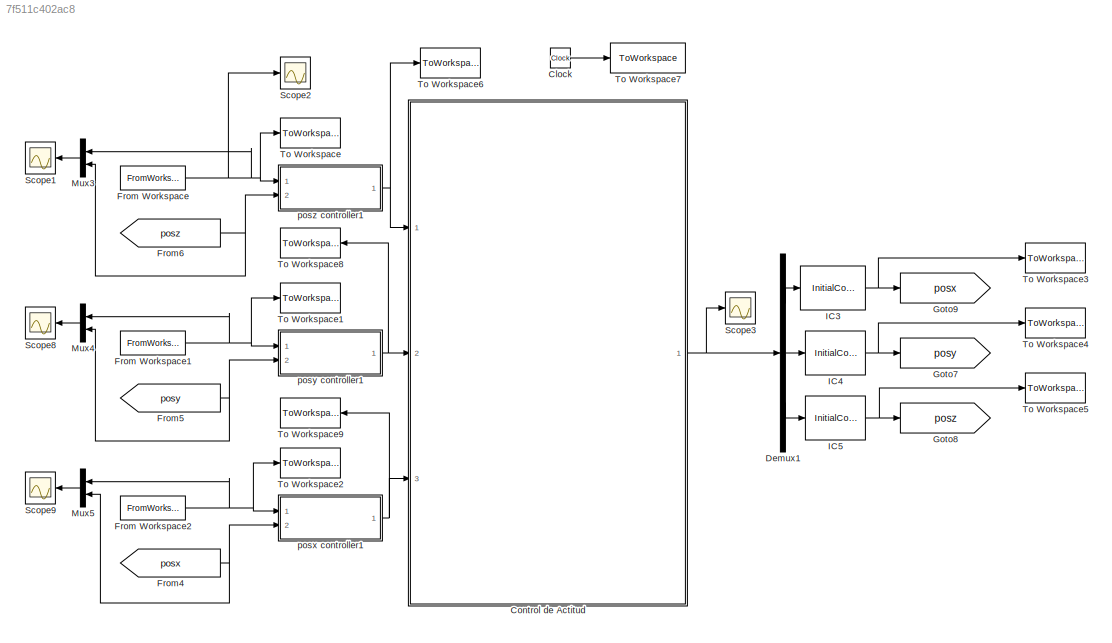
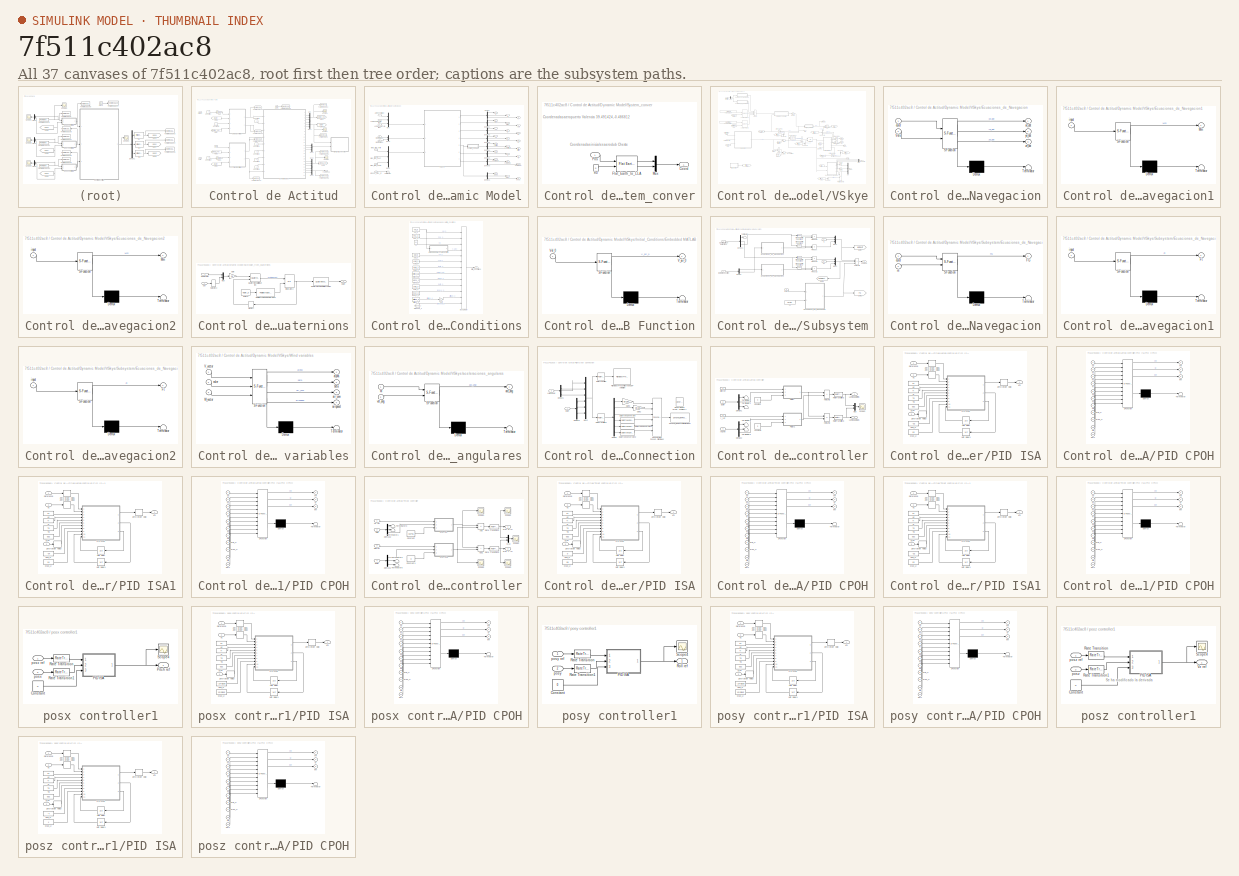
[diagram: thumbnail index - all 37 canvases of the model, root first then tree order]
MODEL slx_7f511c402ac8
KIND model
CONFIG AbsTol = auto
CONFIG EnableMultiTasking = on
CONFIG FixedStep = auto
CONFIG MaxStep = auto
CONFIG MinStep = auto
CONFIG RelTol = 1e-3
CONFIG SampleTimeConstraint = Unconstrained
CONFIG SolverName = ode45
CONFIG StartTime = 0.0
CONFIG StopTime = 100
BLOCK [Clock] Clock
BLOCK [SubSystem] Control de Actitud
  Ports = [3, 1]
  RequestExecContextInheritance = off
  TreatAsAtomicUnit = on
BLOCK [Clock] Control de Actitud/Clock
BLOCK [Constant] Control de Actitud/Constant
  Value = 0
BLOCK [Constant] Control de Actitud/Constant1
  Value = 0
BLOCK [Constant] Control de Actitud/Constant2
  Value = 0
BLOCK [Constant] Control de Actitud/Constant3
  Value = 0
BLOCK [Constant] Control de Actitud/Constant4
  Value = 0
BLOCK [Constant] Control de Actitud/Constant5
  Value = 0
BLOCK [Constant] Control de Actitud/Constant6
  Value = 0
BLOCK [Constant] Control de Actitud/Constant7
  Value = 5
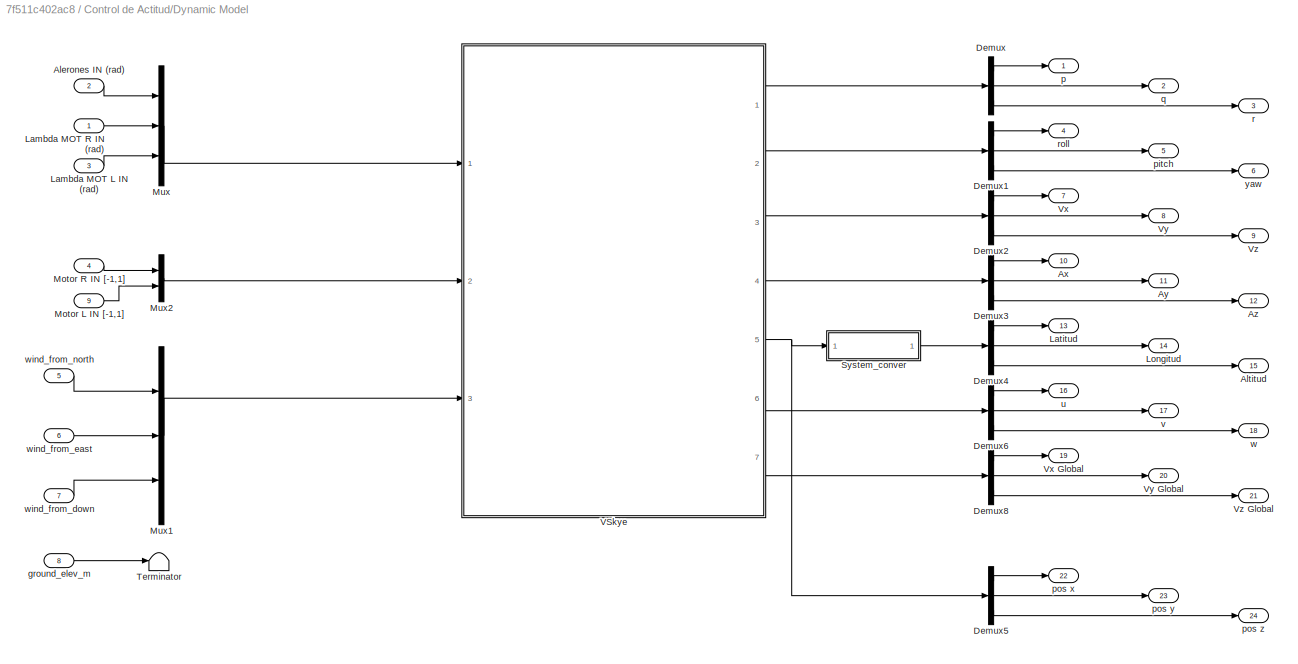
BLOCK [SubSystem] Control de Actitud/Dynamic Model
  Ports = [9, 24]
  RequestExecContextInheritance = off
  TreatAsAtomicUnit = on
BLOCK [Inport] Control de Actitud/Dynamic Model/ Lambda MOT L IN (rad)
  Port = 3
BLOCK [Inport] Control de Actitud/Dynamic Model/Alerones IN (rad)
  Port = 2
BLOCK [Outport] Control de Actitud/Dynamic Model/Altitud
  NameLocation = top
  Port = 15
BLOCK [Outport] Control de Actitud/Dynamic Model/Ax
  NameLocation = top
  Port = 10
BLOCK [Outport] Control de Actitud/Dynamic Model/Ay
  NameLocation = top
  Port = 11
BLOCK [Outport] Control de Actitud/Dynamic Model/Az
  NameLocation = top
  Port = 12
BLOCK [Demux] Control de Actitud/Dynamic Model/Demux
  Outputs = 3
  Ports = [1, 3]
BLOCK [Demux] Control de Actitud/Dynamic Model/Demux1
  Outputs = 3
  Ports = [1, 3]
BLOCK [Demux] Control de Actitud/Dynamic Model/Demux2
  Outputs = 3
  Ports = [1, 3]
BLOCK [Demux] Control de Actitud/Dynamic Model/Demux3
  Outputs = 3
  Ports = [1, 3]
BLOCK [Demux] Control de Actitud/Dynamic Model/Demux4
  Outputs = 3
  Ports = [1, 3]
BLOCK [Demux] Control de Actitud/Dynamic Model/Demux5
  Outputs = 3
  Ports = [1, 3]
BLOCK [Demux] Control de Actitud/Dynamic Model/Demux6
  Outputs = 3
  Ports = [1, 3]
BLOCK [Demux] Control de Actitud/Dynamic Model/Demux8
  Outputs = 3
  Ports = [1, 3]
BLOCK [Inport] Control de Actitud/Dynamic Model/Lambda MOT R IN (rad)
BLOCK [Outport] Control de Actitud/Dynamic Model/Latitud
  NameLocation = top
  Port = 13
BLOCK [Outport] Control de Actitud/Dynamic Model/Longitud
  NameLocation = top
  Port = 14
BLOCK [Inport] Control de Actitud/Dynamic Model/Motor L IN [-1,1]
  Port = 9
BLOCK [Inport] Control de Actitud/Dynamic Model/Motor R IN [-1,1]
  Port = 4
BLOCK [Mux] Control de Actitud/Dynamic Model/Mux
  DisplayOption = bar
  Inputs = 3
  Ports = [3, 1]
BLOCK [Mux] Control de Actitud/Dynamic Model/Mux1
  DisplayOption = bar
  Inputs = 3
  Ports = [3, 1]
BLOCK [Mux] Control de Actitud/Dynamic Model/Mux2
  DisplayOption = bar
  Inputs = 2
  Ports = [2, 1]
BLOCK [SubSystem] Control de Actitud/Dynamic Model/System_conver
  Ports = [1, 1]
  RequestExecContextInheritance = off
BLOCK [Outport] Control de Actitud/Dynamic Model/System_conver/Coord
BLOCK [Reference] Control de Actitud/Dynamic Model/System_conver/Flat_Earth_to_LLA  REF=aerolibtransform2/Flat Earth to LLA
  Ports = [2, 2]
  SourceBlock = aerolibtransform2/Flat Earth to LLA
  SourceProductBaseCode = AE
  SourceType = Flat Earth to LLA
BLOCK [Mux] Control de Actitud/Dynamic Model/System_conver/Mux
  DisplayOption = bar
  Inputs = 2
  Ports = [2, 1]
BLOCK [Inport] Control de Actitud/Dynamic Model/System_conver/Pos
BLOCK [Constant] Control de Actitud/Dynamic Model/System_conver/h0
  Value = 0
BLOCK [Terminator] Control de Actitud/Dynamic Model/Terminator
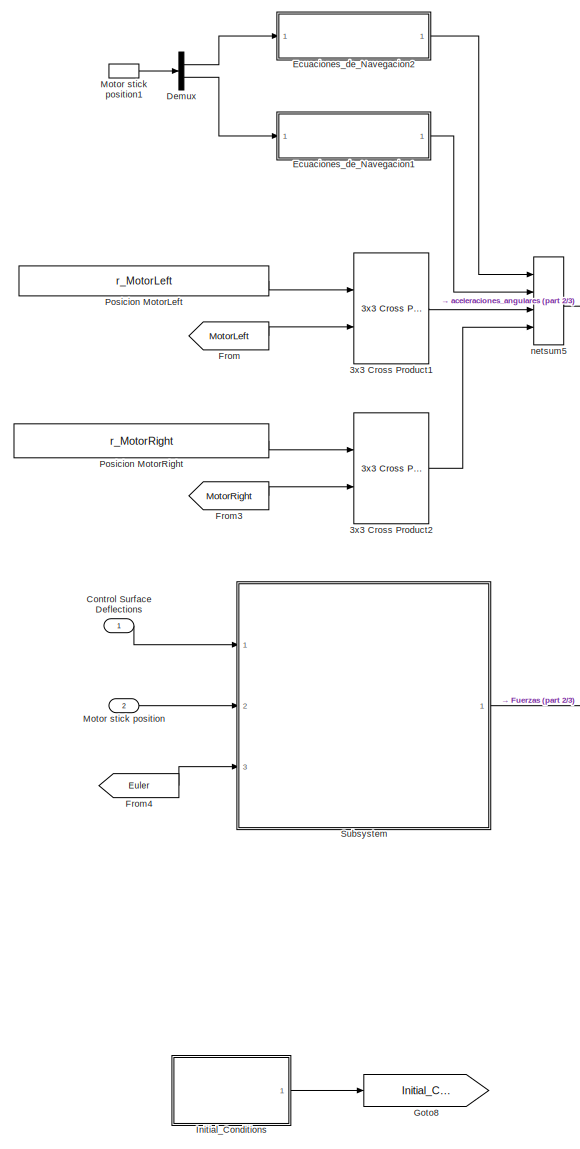
[diagram: Control de Actitud/Dynamic Model/VSkye - part 1/3, left side, full height]
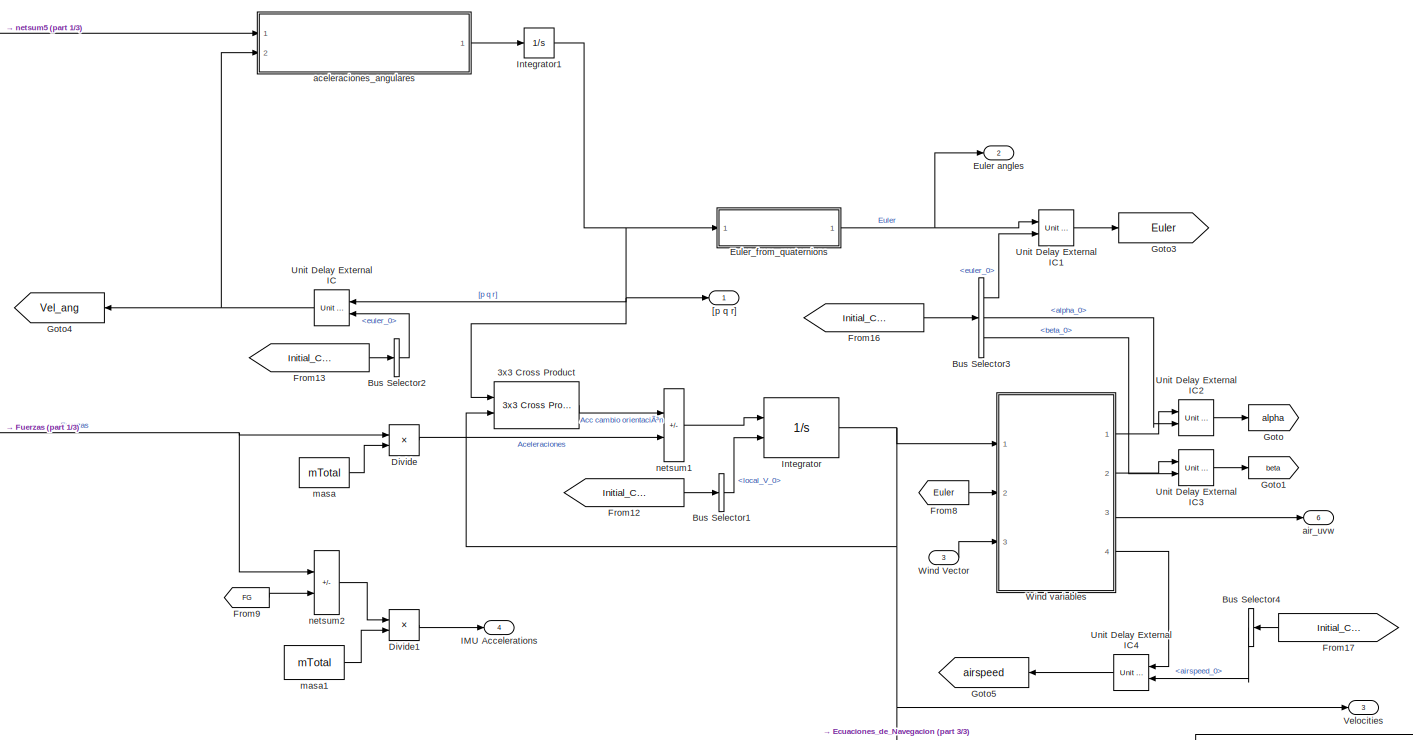
[diagram: Control de Actitud/Dynamic Model/VSkye - part 2/3, central region]
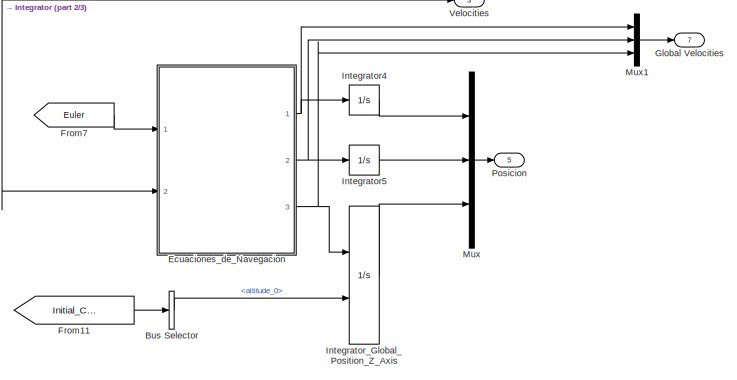
[diagram: Control de Actitud/Dynamic Model/VSkye - part 3/3, bottom right region]
BLOCK [SubSystem] Control de Actitud/Dynamic Model/VSkye
  Ports = [3, 7]
  RequestExecContextInheritance = off
BLOCK [Reference] Control de Actitud/Dynamic Model/VSkye/3x3 Cross Product  REF=sharedutil/3x3 Cross Product
  NameLocation = top
  Ports = [2, 1]
  SourceBlock = sharedutil/3x3 Cross Product
  SourceProductBaseCode = AE,PW,DR,MT,UV,VE
  SourceType = CrossProduct
BLOCK [Reference] Control de Actitud/Dynamic Model/VSkye/3x3 Cross Product1  REF=sharedutil/3x3 Cross Product
  Ports = [2, 1]
  SourceBlock = sharedutil/3x3 Cross Product
  SourceProductBaseCode = AE,PW,DR,MT,UV,VE
  SourceType = CrossProduct
BLOCK [Reference] Control de Actitud/Dynamic Model/VSkye/3x3 Cross Product2  REF=sharedutil/3x3 Cross Product
  Ports = [2, 1]
  SourceBlock = sharedutil/3x3 Cross Product
  SourceProductBaseCode = AE,PW,DR,MT,UV,VE
  SourceType = CrossProduct
BLOCK [BusSelector] Control de Actitud/Dynamic Model/VSkye/Bus Selector
  OutputSignals = altitude_0
  Ports = [1, 1]
BLOCK [BusSelector] Control de Actitud/Dynamic Model/VSkye/Bus Selector1
  OutputSignals = local_V_0
  Ports = [1, 1]
BLOCK [BusSelector] Control de Actitud/Dynamic Model/VSkye/Bus Selector2
  OutputSignals = euler_0
  Ports = [1, 1]
BLOCK [BusSelector] Control de Actitud/Dynamic Model/VSkye/Bus Selector3
  OutputSignals = euler_0,alpha_0,beta_0
  Ports = [1, 3]
BLOCK [BusSelector] Control de Actitud/Dynamic Model/VSkye/Bus Selector4
  NameLocation = top
  OutputSignals = airspeed_0
  Ports = [1, 1]
BLOCK [Inport] Control de Actitud/Dynamic Model/VSkye/Control Surface Deflections
  PortDimensions = 3
BLOCK [Demux] Control de Actitud/Dynamic Model/VSkye/Demux
  Outputs = 2
  Ports = [1, 2]
BLOCK [Product] Control de Actitud/Dynamic Model/VSkye/Divide
  Inputs = */
  Ports = [2, 1]
BLOCK [Product] Control de Actitud/Dynamic Model/VSkye/Divide1
  Inputs = */
  Ports = [2, 1]
BLOCK [SubSystem] Control de Actitud/Dynamic Model/VSkye/Ecuaciones_de_Navegacion
  ErrorFcn = Stateflow.Translate.translate
  PermitHierarchicalResolution = ExplicitOnly
  Ports = [2, 3]
  RequestExecContextInheritance = off
  SFBlockType = MATLAB Function
  TreatAsAtomicUnit = on
BLOCK [Demux] Control de Actitud/Dynamic Model/VSkye/Ecuaciones_de_Navegacion/ Demux 
  Outputs = 1
  Ports = [1, 1]
BLOCK [S-Function] Control de Actitud/Dynamic Model/VSkye/Ecuaciones_de_Navegacion/ SFunction 
  EnableBusSupport = on
  FunctionName = sf_sfun
  PortCounts = [2 4]
  Ports = [2, 4]
  SFcnIsStateOwnerBlock = off
  SFunctionDeploymentMode = off
  Tag = Stateflow S-Function 9
BLOCK [Terminator] Control de Actitud/Dynamic Model/VSkye/Ecuaciones_de_Navegacion/ Terminator 
BLOCK [Inport] Control de Actitud/Dynamic Model/VSkye/Ecuaciones_de_Navegacion/Vels
  Port = 2
BLOCK [Inport] Control de Actitud/Dynamic Model/VSkye/Ecuaciones_de_Navegacion/euler
BLOCK [Outport] Control de Actitud/Dynamic Model/VSkye/Ecuaciones_de_Navegacion/xe_dot
BLOCK [Outport] Control de Actitud/Dynamic Model/VSkye/Ecuaciones_de_Navegacion/ye_dot
  Port = 2
BLOCK [Outport] Control de Actitud/Dynamic Model/VSkye/Ecuaciones_de_Navegacion/ze_dot
  Port = 3
BLOCK [SubSystem] Control de Actitud/Dynamic Model/VSkye/Ecuaciones_de_Navegacion1
  ErrorFcn = Stateflow.Translate.translate
  PermitHierarchicalResolution = ExplicitOnly
  Ports = [1, 1]
  RequestExecContextInheritance = off
  SFBlockType = MATLAB Function
  TreatAsAtomicUnit = on
BLOCK [Demux] Control de Actitud/Dynamic Model/VSkye/Ecuaciones_de_Navegacion1/ Demux 
  Outputs = 1
  Ports = [1, 1]
BLOCK [S-Function] Control de Actitud/Dynamic Model/VSkye/Ecuaciones_de_Navegacion1/ SFunction 
  EnableBusSupport = on
  FunctionName = sf_sfun
  PortCounts = [1 2]
  Ports = [1, 2]
  SFcnIsStateOwnerBlock = off
  SFunctionDeploymentMode = off
  Tag = Stateflow S-Function 7
BLOCK [Terminator] Control de Actitud/Dynamic Model/VSkye/Ecuaciones_de_Navegacion1/ Terminator 
BLOCK [Outport] Control de Actitud/Dynamic Model/VSkye/Ecuaciones_de_Navegacion1/Mm
BLOCK [Inport] Control de Actitud/Dynamic Model/VSkye/Ecuaciones_de_Navegacion1/input
BLOCK [SubSystem] Control de Actitud/Dynamic Model/VSkye/Ecuaciones_de_Navegacion2
  ErrorFcn = Stateflow.Translate.translate
  PermitHierarchicalResolution = ExplicitOnly
  Ports = [1, 1]
  RequestExecContextInheritance = off
  SFBlockType = MATLAB Function
  TreatAsAtomicUnit = on
BLOCK [Demux] Control de Actitud/Dynamic Model/VSkye/Ecuaciones_de_Navegacion2/ Demux 
  Outputs = 1
  Ports = [1, 1]
BLOCK [S-Function] Control de Actitud/Dynamic Model/VSkye/Ecuaciones_de_Navegacion2/ SFunction 
  EnableBusSupport = on
  FunctionName = sf_sfun
  PortCounts = [1 2]
  Ports = [1, 2]
  SFcnIsStateOwnerBlock = off
  SFunctionDeploymentMode = off
  Tag = Stateflow S-Function 5
BLOCK [Terminator] Control de Actitud/Dynamic Model/VSkye/Ecuaciones_de_Navegacion2/ Terminator 
BLOCK [Outport] Control de Actitud/Dynamic Model/VSkye/Ecuaciones_de_Navegacion2/Mm
BLOCK [Inport] Control de Actitud/Dynamic Model/VSkye/Ecuaciones_de_Navegacion2/input
BLOCK [Outport] Control de Actitud/Dynamic Model/VSkye/Euler angles
  Port = 2
BLOCK [SubSystem] Control de Actitud/Dynamic Model/VSkye/Euler_from_quaternions
  Ports = [1, 1]
  RequestExecContextInheritance = off
  ShowPortLabels = FromPortBlockName
BLOCK [Outport] Control de Actitud/Dynamic Model/VSkye/Euler_from_quaternions/Euler
  NameLocation = top
BLOCK [Constant] Control de Actitud/Dynamic Model/VSkye/Euler_from_quaternions/Euler 0
  Value = euler_0
BLOCK [Gain] Control de Actitud/Dynamic Model/VSkye/Euler_from_quaternions/Gain
  Gain = 0.5
  NameLocation = top
BLOCK [Integrator] Control de Actitud/Dynamic Model/VSkye/Euler_from_quaternions/Integrator2
  InitialCondition = [0 0 0 0]
  InitialConditionSource = external
  LowerSaturationLimit = -Inf
  Ports = [2, 1]
  UpperSaturationLimit = Inf
BLOCK [Memory] Control de Actitud/Dynamic Model/VSkye/Euler_from_quaternions/Memory
  InitialCondition = [1 0 0 0]
BLOCK [Mux] Control de Actitud/Dynamic Model/VSkye/Euler_from_quaternions/Mux
  DisplayOption = bar
  Inputs = 2
  Ports = [2, 1]
BLOCK [Constant] Control de Actitud/Dynamic Model/VSkye/Euler_from_quaternions/Quat scalar
  Value = 0
BLOCK [Reference] Control de Actitud/Dynamic Model/VSkye/Euler_from_quaternions/Quaternion Multiplication  REF=aerolibutil/Quaternion
Multiplication
  Ports = [2, 1]
  SourceBlock = aerolibutil/Quaternion\nMultiplication
  SourceProductBaseCode = AE
  SourceType = Quaternion Multiplication
BLOCK [Reference] Control de Actitud/Dynamic Model/VSkye/Euler_from_quaternions/Quaternions to Rotation Angles  REF=sharedtransform/Quaternions to Rotation Angles
  AttributesFormatString = Rotation Order: %<rotationOrder>
  Ports = [1, 1]
  SourceBlock = sharedtransform/Quaternions to Rotation Angles
  SourceProductBaseCode = AE,PW,DR,MT,UV,VE
  SourceType = Quat2Ang
BLOCK [Reference] Control de Actitud/Dynamic Model/VSkye/Euler_from_quaternions/Rotation Angles to Quaternions  REF=sharedtransform/Rotation Angles to Quaternions
  AttributesFormatString = Rotation Order: %<rotationOrder>
  Ports = [1, 1]
  SourceBlock = sharedtransform/Rotation Angles to Quaternions
  SourceProductBaseCode = AE,PW,DR,MT,UV,VE
  SourceType = Ang2Quat
BLOCK [Selector] Control de Actitud/Dynamic Model/VSkye/Euler_from_quaternions/Selector2
  IndexOptions = Index vector (dialog)
  Indices = [3 2 1]
  InputPortWidth = 3
  NameLocation = top
  OutputSizes = 1
  Ports = [1, 1]
BLOCK [Inport] Control de Actitud/Dynamic Model/VSkye/Euler_from_quaternions/p q r
  NameLocation = top
BLOCK [From] Control de Actitud/Dynamic Model/VSkye/From
  GotoTag = MotorLeft
  TagVisibility = global
BLOCK [From] Control de Actitud/Dynamic Model/VSkye/From11
  GotoTag = Initial_Conditions
  TagVisibility = global
BLOCK [From] Control de Actitud/Dynamic Model/VSkye/From12
  GotoTag = Initial_Conditions
  TagVisibility = global
BLOCK [From] Control de Actitud/Dynamic Model/VSkye/From13
  GotoTag = Initial_Conditions
  TagVisibility = global
BLOCK [From] Control de Actitud/Dynamic Model/VSkye/From16
  GotoTag = Initial_Conditions
  TagVisibility = global
BLOCK [From] Control de Actitud/Dynamic Model/VSkye/From17
  GotoTag = Initial_Conditions
  NameLocation = top
  TagVisibility = global
BLOCK [From] Control de Actitud/Dynamic Model/VSkye/From3
  GotoTag = MotorRight
  TagVisibility = global
BLOCK [From] Control de Actitud/Dynamic Model/VSkye/From4
  GotoTag = Euler
BLOCK [From] Control de Actitud/Dynamic Model/VSkye/From7
  GotoTag = Euler
BLOCK [From] Control de Actitud/Dynamic Model/VSkye/From8
  GotoTag = Euler
BLOCK [From] Control de Actitud/Dynamic Model/VSkye/From9
  GotoTag = FG
  TagVisibility = global
BLOCK [Outport] Control de Actitud/Dynamic Model/VSkye/Global Velocities
  NameLocation = top
  Port = 7
BLOCK [Goto] Control de Actitud/Dynamic Model/VSkye/Goto
  GotoTag = alpha
BLOCK [Goto] Control de Actitud/Dynamic Model/VSkye/Goto1
  GotoTag = beta
BLOCK [Goto] Control de Actitud/Dynamic Model/VSkye/Goto3
  GotoTag = Euler
BLOCK [Goto] Control de Actitud/Dynamic Model/VSkye/Goto4
  GotoTag = Vel_ang
  NameLocation = top
BLOCK [Goto] Control de Actitud/Dynamic Model/VSkye/Goto5
  GotoTag = airspeed
  NameLocation = top
BLOCK [Goto] Control de Actitud/Dynamic Model/VSkye/Goto8
  GotoTag = Initial_Conditions
  TagVisibility = global
BLOCK [Outport] Control de Actitud/Dynamic Model/VSkye/IMU Accelerations 
  NameLocation = top
  Port = 4
BLOCK [SubSystem] Control de Actitud/Dynamic Model/VSkye/Initial_Conditions
  Ports = [0, 1]
  RequestExecContextInheritance = off
BLOCK [BusCreator] Control de Actitud/Dynamic Model/VSkye/Initial_Conditions/Bus Creator
  DisplayOption = bar
  InheritFromInputs = on
  Inputs = 13
  Ports = [13, 1]
BLOCK [SubSystem] Control de Actitud/Dynamic Model/VSkye/Initial_Conditions/Embedded MATLAB Function
  ErrorFcn = Stateflow.Translate.translate
  PermitHierarchicalResolution = ExplicitOnly
  Ports = [1, 1]
  RequestExecContextInheritance = off
  SFBlockType = MATLAB Function
  TreatAsAtomicUnit = on
BLOCK [Demux] Control de Actitud/Dynamic Model/VSkye/Initial_Conditions/Embedded MATLAB Function/ Demux 
  Outputs = 1
  Ports = [1, 1]
BLOCK [S-Function] Control de Actitud/Dynamic Model/VSkye/Initial_Conditions/Embedded MATLAB Function/ SFunction 
  EnableBusSupport = on
  FunctionName = sf_sfun
  PortCounts = [1 2]
  Ports = [1, 2]
  SFcnIsStateOwnerBlock = off
  SFunctionDeploymentMode = off
  Tag = Stateflow S-Function 31
BLOCK [Terminator] Control de Actitud/Dynamic Model/VSkye/Initial_Conditions/Embedded MATLAB Function/ Terminator 
BLOCK [Outport] Control de Actitud/Dynamic Model/VSkye/Initial_Conditions/Embedded MATLAB Function/V_air_0
BLOCK [Inport] Control de Actitud/Dynamic Model/VSkye/Initial_Conditions/Embedded MATLAB Function/Vel_0
BLOCK [Gain] Control de Actitud/Dynamic Model/VSkye/Initial_Conditions/Gain
  Gain = -1
BLOCK [Outport] Control de Actitud/Dynamic Model/VSkye/Initial_Conditions/Initial_Conditions
BLOCK [Constant] Control de Actitud/Dynamic Model/VSkye/Initial_Conditions/Pos_0
  Value = Pos_0
BLOCK [Constant] Control de Actitud/Dynamic Model/VSkye/Initial_Conditions/Vel_0
  Value = Vel_0
BLOCK [Constant] Control de Actitud/Dynamic Model/VSkye/Initial_Conditions/airspeed_0
  Value = airspeed_0
BLOCK [Constant] Control de Actitud/Dynamic Model/VSkye/Initial_Conditions/alpha_0
  Value = alpha_0
BLOCK [Constant] Control de Actitud/Dynamic Model/VSkye/Initial_Conditions/altitude_0
  Value = altitude_0
BLOCK [Constant] Control de Actitud/Dynamic Model/VSkye/Initial_Conditions/beta_0
  Value = beta_0
BLOCK [Constant] Control de Actitud/Dynamic Model/VSkye/Initial_Conditions/deflect_sat
  Value = deflect_sat
BLOCK [Constant] Control de Actitud/Dynamic Model/VSkye/Initial_Conditions/euler_0
  Value = euler_0
BLOCK [Constant] Control de Actitud/Dynamic Model/VSkye/Initial_Conditions/h0
  Value = h0
BLOCK [Constant] Control de Actitud/Dynamic Model/VSkye/Initial_Conditions/local_V_0
  Value = local_V_0
BLOCK [Constant] Control de Actitud/Dynamic Model/VSkye/Initial_Conditions/pqr_0
  Value = pqr_0
BLOCK [Constant] Control de Actitud/Dynamic Model/VSkye/Initial_Conditions/theta_0
  Value = theta_0
BLOCK [Integrator] Control de Actitud/Dynamic Model/VSkye/Integrator
  InitialConditionSource = external
  NameLocation = top
  Ports = [2, 1]
BLOCK [Integrator] Control de Actitud/Dynamic Model/VSkye/Integrator1
  InitialCondition = [0 0 0]
  Ports = [1, 1]
BLOCK [Integrator] Control de Actitud/Dynamic Model/VSkye/Integrator4
  Ports = [1, 1]
BLOCK [Integrator] Control de Actitud/Dynamic Model/VSkye/Integrator5
  Ports = [1, 1]
BLOCK [Integrator] Control de Actitud/Dynamic Model/VSkye/Integrator_Global_Position_Z_Axis
  InitialConditionSource = external
  Ports = [2, 1]
  UpperSaturationLimit = 0
BLOCK [Inport] Control de Actitud/Dynamic Model/VSkye/Motor stick position
  Port = 2
  PortDimensions = 2
BLOCK [InportShadow] Control de Actitud/Dynamic Model/VSkye/Motor stick position1
  Port = 2
  PortDimensions = 2
BLOCK [Mux] Control de Actitud/Dynamic Model/VSkye/Mux
  DisplayOption = bar
  Inputs = 3
  Ports = [3, 1]
BLOCK [Mux] Control de Actitud/Dynamic Model/VSkye/Mux1
  DisplayOption = bar
  Inputs = 3
  Ports = [3, 1]
BLOCK [Outport] Control de Actitud/Dynamic Model/VSkye/Posicion
  Port = 5
BLOCK [Constant] Control de Actitud/Dynamic Model/VSkye/Posicion MotorLeft
  Value = r_MotorLeft
BLOCK [Constant] Control de Actitud/Dynamic Model/VSkye/Posicion MotorRight
  Value = r_MotorRight
BLOCK [SubSystem] Control de Actitud/Dynamic Model/VSkye/Subsystem
  Ports = [3, 1]
  RequestExecContextInheritance = off
BLOCK [Constant] Control de Actitud/Dynamic Model/VSkye/Subsystem/C 
  Value = 0
BLOCK [Constant] Control de Actitud/Dynamic Model/VSkye/Subsystem/C1
  Value = 0
BLOCK [Constant] Control de Actitud/Dynamic Model/VSkye/Subsystem/C2
  Value = mTotal
BLOCK [Inport] Control de Actitud/Dynamic Model/VSkye/Subsystem/Control Surface Deflections
BLOCK [Demux] Control de Actitud/Dynamic Model/VSkye/Subsystem/Demux
  Outputs = 2
  Ports = [1, 2]
BLOCK [Demux] Control de Actitud/Dynamic Model/VSkye/Subsystem/Demux1
  Outputs = 3
  Ports = [1, 3]
BLOCK [SubSystem] Control de Actitud/Dynamic Model/VSkye/Subsystem/Ecuaciones_de_Navegacion
  ErrorFcn = Stateflow.Translate.translate
  PermitHierarchicalResolution = ExplicitOnly
  Ports = [2, 1]
  RequestExecContextInheritance = off
  SFBlockType = MATLAB Function
  TreatAsAtomicUnit = on
BLOCK [Demux] Control de Actitud/Dynamic Model/VSkye/Subsystem/Ecuaciones_de_Navegacion/ Demux 
  Outputs = 1
  Ports = [1, 1]
BLOCK [S-Function] Control de Actitud/Dynamic Model/VSkye/Subsystem/Ecuaciones_de_Navegacion/ SFunction 
  EnableBusSupport = on
  FunctionName = sf_sfun
  PortCounts = [2 2]
  Ports = [2, 2]
  SFcnIsStateOwnerBlock = off
  SFunctionDeploymentMode = off
  Tag = Stateflow S-Function 1
BLOCK [Terminator] Control de Actitud/Dynamic Model/VSkye/Subsystem/Ecuaciones_de_Navegacion/ Terminator 
BLOCK [Outport] Control de Actitud/Dynamic Model/VSkye/Subsystem/Ecuaciones_de_Navegacion/FG
BLOCK [Inport] Control de Actitud/Dynamic Model/VSkye/Subsystem/Ecuaciones_de_Navegacion/euler
BLOCK [Inport] Control de Actitud/Dynamic Model/VSkye/Subsystem/Ecuaciones_de_Navegacion/m
  Port = 2
BLOCK [SubSystem] Control de Actitud/Dynamic Model/VSkye/Subsystem/Ecuaciones_de_Navegacion1
  ErrorFcn = Stateflow.Translate.translate
  PermitHierarchicalResolution = ExplicitOnly
  Ports = [1, 1]
  RequestExecContextInheritance = off
  SFBlockType = MATLAB Function
  TreatAsAtomicUnit = on
BLOCK [Demux] Control de Actitud/Dynamic Model/VSkye/Subsystem/Ecuaciones_de_Navegacion1/ Demux 
  Outputs = 1
  Ports = [1, 1]
BLOCK [S-Function] Control de Actitud/Dynamic Model/VSkye/Subsystem/Ecuaciones_de_Navegacion1/ SFunction 
  EnableBusSupport = on
  FunctionName = sf_sfun
  PortCounts = [1 2]
  Ports = [1, 2]
  SFcnIsStateOwnerBlock = off
  SFunctionDeploymentMode = off
  Tag = Stateflow S-Function 2
BLOCK [Terminator] Control de Actitud/Dynamic Model/VSkye/Subsystem/Ecuaciones_de_Navegacion1/ Terminator 
BLOCK [Outport] Control de Actitud/Dynamic Model/VSkye/Subsystem/Ecuaciones_de_Navegacion1/Ft
BLOCK [Inport] Control de Actitud/Dynamic Model/VSkye/Subsystem/Ecuaciones_de_Navegacion1/input
BLOCK [SubSystem] Control de Actitud/Dynamic Model/VSkye/Subsystem/Ecuaciones_de_Navegacion2
  ErrorFcn = Stateflow.Translate.translate
  PermitHierarchicalResolution = ExplicitOnly
  Ports = [1, 1]
  RequestExecContextInheritance = off
  SFBlockType = MATLAB Function
  TreatAsAtomicUnit = on
BLOCK [Demux] Control de Actitud/Dynamic Model/VSkye/Subsystem/Ecuaciones_de_Navegacion2/ Demux 
  Outputs = 1
  Ports = [1, 1]
BLOCK [S-Function] Control de Actitud/Dynamic Model/VSkye/Subsystem/Ecuaciones_de_Navegacion2/ SFunction 
  EnableBusSupport = on
  FunctionName = sf_sfun
  PortCounts = [1 2]
  Ports = [1, 2]
  SFcnIsStateOwnerBlock = off
  SFunctionDeploymentMode = off
  Tag = Stateflow S-Function 3
BLOCK [Terminator] Control de Actitud/Dynamic Model/VSkye/Subsystem/Ecuaciones_de_Navegacion2/ Terminator 
BLOCK [Outport] Control de Actitud/Dynamic Model/VSkye/Subsystem/Ecuaciones_de_Navegacion2/Ft
BLOCK [Inport] Control de Actitud/Dynamic Model/VSkye/Subsystem/Ecuaciones_de_Navegacion2/input
BLOCK [Inport] Control de Actitud/Dynamic Model/VSkye/Subsystem/Euler
  Port = 3
BLOCK [Outport] Control de Actitud/Dynamic Model/VSkye/Subsystem/Fuerzas
BLOCK [Goto] Control de Actitud/Dynamic Model/VSkye/Subsystem/Goto1
  GotoTag = FG
  TagVisibility = global
BLOCK [Goto] Control de Actitud/Dynamic Model/VSkye/Subsystem/Goto7
  GotoTag = MotorLeft
  TagVisibility = global
BLOCK [Goto] Control de Actitud/Dynamic Model/VSkye/Subsystem/Goto9
  GotoTag = MotorRight
  NameLocation = top
  TagVisibility = global
BLOCK [Inport] Control de Actitud/Dynamic Model/VSkye/Subsystem/Motor stick position
  Port = 2
BLOCK [Mux] Control de Actitud/Dynamic Model/VSkye/Subsystem/Mux1
  DisplayOption = bar
  Inputs = 3
  Ports = [3, 1]
BLOCK [Mux] Control de Actitud/Dynamic Model/VSkye/Subsystem/Mux2
  DisplayOption = bar
  Inputs = 3
  Ports = [3, 1]
BLOCK [Product] Control de Actitud/Dynamic Model/VSkye/Subsystem/Product
  Ports = [2, 1]
  RndMeth = Zero
BLOCK [Product] Control de Actitud/Dynamic Model/VSkye/Subsystem/Product1
  Ports = [2, 1]
  RndMeth = Zero
BLOCK [Product] Control de Actitud/Dynamic Model/VSkye/Subsystem/Product2
  Ports = [2, 1]
  RndMeth = Zero
BLOCK [Product] Control de Actitud/Dynamic Model/VSkye/Subsystem/Product3
  Ports = [2, 1]
  RndMeth = Zero
BLOCK [Terminator] Control de Actitud/Dynamic Model/VSkye/Subsystem/Terminator
BLOCK [Trigonometry] Control de Actitud/Dynamic Model/VSkye/Subsystem/Trigonometric Function1
  Operator = cos
  Ports = [1, 1]
BLOCK [Trigonometry] Control de Actitud/Dynamic Model/VSkye/Subsystem/Trigonometric Function2
  Ports = [1, 1]
BLOCK [Trigonometry] Control de Actitud/Dynamic Model/VSkye/Subsystem/Trigonometric Function3
  Operator = cos
  Ports = [1, 1]
BLOCK [Trigonometry] Control de Actitud/Dynamic Model/VSkye/Subsystem/Trigonometric Function4
  Ports = [1, 1]
BLOCK [Sum] Control de Actitud/Dynamic Model/VSkye/Subsystem/netsum4
  IconShape = rectangular
  InputSameDT = on
  Inputs = 3
  OutDataTypeStr = Inherit: Same as first input
  Ports = [3, 1]
  SaturateOnIntegerOverflow = on
BLOCK [Reference] Control de Actitud/Dynamic Model/VSkye/Unit Delay External IC  REF=simulink_need_slupdate/Unit Delay
External IC
  NameLocation = top
  Ports = [2, 1]
  SourceBlock = simulink_need_slupdate/Unit Delay\nExternal IC
  SourceProductBaseCode = SL
  SourceType = Unit Delay External Initial Condition
BLOCK [Reference] Control de Actitud/Dynamic Model/VSkye/Unit Delay External IC1  REF=simulink_need_slupdate/Unit Delay
External IC
  Ports = [2, 1]
  SourceBlock = simulink_need_slupdate/Unit Delay\nExternal IC
  SourceProductBaseCode = SL
  SourceType = Unit Delay External Initial Condition
BLOCK [Reference] Control de Actitud/Dynamic Model/VSkye/Unit Delay External IC2  REF=simulink_need_slupdate/Unit Delay
External IC
  Ports = [2, 1]
  SourceBlock = simulink_need_slupdate/Unit Delay\nExternal IC
  SourceProductBaseCode = SL
  SourceType = Unit Delay External Initial Condition
BLOCK [Reference] Control de Actitud/Dynamic Model/VSkye/Unit Delay External IC3  REF=simulink_need_slupdate/Unit Delay
External IC
  Ports = [2, 1]
  SourceBlock = simulink_need_slupdate/Unit Delay\nExternal IC
  SourceProductBaseCode = SL
  SourceType = Unit Delay External Initial Condition
BLOCK [Reference] Control de Actitud/Dynamic Model/VSkye/Unit Delay External IC4  REF=simulink_need_slupdate/Unit Delay
External IC
  NameLocation = top
  Ports = [2, 1]
  SourceBlock = simulink_need_slupdate/Unit Delay\nExternal IC
  SourceProductBaseCode = SL
  SourceType = Unit Delay External Initial Condition
BLOCK [Outport] Control de Actitud/Dynamic Model/VSkye/Velocities
  NameLocation = top
  Port = 3
BLOCK [Inport] Control de Actitud/Dynamic Model/VSkye/Wind Vector
  Port = 3
BLOCK [SubSystem] Control de Actitud/Dynamic Model/VSkye/Wind variables
  ErrorFcn = Stateflow.Translate.translate
  PermitHierarchicalResolution = ExplicitOnly
  Ports = [3, 4]
  RequestExecContextInheritance = off
  SFBlockType = MATLAB Function
  TreatAsAtomicUnit = on
BLOCK [Demux] Control de Actitud/Dynamic Model/VSkye/Wind variables/ Demux 
  Outputs = 1
  Ports = [1, 1]
BLOCK [S-Function] Control de Actitud/Dynamic Model/VSkye/Wind variables/ SFunction 
  EnableBusSupport = on
  FunctionName = sf_sfun
  PortCounts = [3 5]
  Ports = [3, 5]
  SFcnIsStateOwnerBlock = off
  SFunctionDeploymentMode = off
  Tag = Stateflow S-Function 4
BLOCK [Terminator] Control de Actitud/Dynamic Model/VSkye/Wind variables/ Terminator 
BLOCK [Inport] Control de Actitud/Dynamic Model/VSkye/Wind variables/V_vector
BLOCK [Inport] Control de Actitud/Dynamic Model/VSkye/Wind variables/W_vector
  Port = 3
BLOCK [Outport] Control de Actitud/Dynamic Model/VSkye/Wind variables/air_uvw
  Port = 3
BLOCK [Outport] Control de Actitud/Dynamic Model/VSkye/Wind variables/airspeed
  Port = 4
BLOCK [Outport] Control de Actitud/Dynamic Model/VSkye/Wind variables/alpha
BLOCK [Outport] Control de Actitud/Dynamic Model/VSkye/Wind variables/beta
  Port = 2
BLOCK [Inport] Control de Actitud/Dynamic Model/VSkye/Wind variables/euler
  Port = 2
BLOCK [Outport] Control de Actitud/Dynamic Model/VSkye/[p q r]
BLOCK [SubSystem] Control de Actitud/Dynamic Model/VSkye/aceleraciones_angulares
  ErrorFcn = Stateflow.Translate.translate
  NameLocation = top
  PermitHierarchicalResolution = ExplicitOnly
  Ports = [2, 1]
  RequestExecContextInheritance = off
  SFBlockType = MATLAB Function
  TreatAsAtomicUnit = on
BLOCK [Demux] Control de Actitud/Dynamic Model/VSkye/aceleraciones_angulares/ Demux 
  Outputs = 1
  Ports = [1, 1]
BLOCK [S-Function] Control de Actitud/Dynamic Model/VSkye/aceleraciones_angulares/ SFunction 
  EnableBusSupport = on
  FunctionName = sf_sfun
  PortCounts = [2 2]
  Ports = [2, 2]
  SFcnIsStateOwnerBlock = off
  SFunctionDeploymentMode = off
  Tag = Stateflow S-Function 6
BLOCK [Terminator] Control de Actitud/Dynamic Model/VSkye/aceleraciones_angulares/ Terminator 
BLOCK [Inport] Control de Actitud/Dynamic Model/VSkye/aceleraciones_angulares/M
BLOCK [Outport] Control de Actitud/Dynamic Model/VSkye/aceleraciones_angulares/acc_ang
BLOCK [Inport] Control de Actitud/Dynamic Model/VSkye/aceleraciones_angulares/vel_ang
  Port = 2
BLOCK [Outport] Control de Actitud/Dynamic Model/VSkye/air_uvw
  Port = 6
BLOCK [Constant] Control de Actitud/Dynamic Model/VSkye/masa
  Value = mTotal
BLOCK [Constant] Control de Actitud/Dynamic Model/VSkye/masa1
  Value = mTotal
BLOCK [Sum] Control de Actitud/Dynamic Model/VSkye/netsum1
  IconShape = rectangular
  InputSameDT = on
  Inputs = -+
  OutDataTypeStr = Inherit: Same as first input
  Ports = [2, 1]
  SaturateOnIntegerOverflow = on
BLOCK [Sum] Control de Actitud/Dynamic Model/VSkye/netsum2
  IconShape = rectangular
  InputSameDT = on
  Inputs = +-
  OutDataTypeStr = Inherit: Same as first input
  Ports = [2, 1]
  SaturateOnIntegerOverflow = on
BLOCK [Sum] Control de Actitud/Dynamic Model/VSkye/netsum5
  IconShape = rectangular
  InputSameDT = on
  Inputs = 4
  OutDataTypeStr = Inherit: Same as first input
  Ports = [4, 1]
  SaturateOnIntegerOverflow = on
BLOCK [Outport] Control de Actitud/Dynamic Model/Vx
  NameLocation = top
  Port = 7
BLOCK [Outport] Control de Actitud/Dynamic Model/Vx Global
  NameLocation = top
  Port = 19
BLOCK [Outport] Control de Actitud/Dynamic Model/Vy
  NameLocation = top
  Port = 8
BLOCK [Outport] Control de Actitud/Dynamic Model/Vy Global
  NameLocation = top
  Port = 20
BLOCK [Outport] Control de Actitud/Dynamic Model/Vz
  NameLocation = top
  Port = 9
BLOCK [Outport] Control de Actitud/Dynamic Model/Vz Global
  NameLocation = top
  Port = 21
BLOCK [Inport] Control de Actitud/Dynamic Model/ground_elev_m
  Port = 8
BLOCK [Outport] Control de Actitud/Dynamic Model/p
  NameLocation = top
BLOCK [Outport] Control de Actitud/Dynamic Model/pitch
  NameLocation = top
  Port = 5
BLOCK [Outport] Control de Actitud/Dynamic Model/pos x
  NameLocation = top
  Port = 22
BLOCK [Outport] Control de Actitud/Dynamic Model/pos y
  NameLocation = top
  Port = 23
BLOCK [Outport] Control de Actitud/Dynamic Model/pos z
  NameLocation = top
  Port = 24
BLOCK [Outport] Control de Actitud/Dynamic Model/q
  NameLocation = top
  Port = 2
BLOCK [Outport] Control de Actitud/Dynamic Model/r
  NameLocation = top
  Port = 3
BLOCK [Outport] Control de Actitud/Dynamic Model/roll
  NameLocation = top
  Port = 4
BLOCK [Outport] Control de Actitud/Dynamic Model/u
  NameLocation = top
  Port = 16
BLOCK [Outport] Control de Actitud/Dynamic Model/v
  NameLocation = top
  Port = 17
BLOCK [Outport] Control de Actitud/Dynamic Model/w
  NameLocation = top
  Port = 18
BLOCK [Inport] Control de Actitud/Dynamic Model/wind_from_down
  Port = 7
BLOCK [Inport] Control de Actitud/Dynamic Model/wind_from_east
  Port = 6
BLOCK [Inport] Control de Actitud/Dynamic Model/wind_from_north
  Port = 5
BLOCK [Outport] Control de Actitud/Dynamic Model/yaw
  NameLocation = top
  Port = 6
BLOCK [SubSystem] Control de Actitud/FlightGear Connection
  Ports = [2]
  RequestExecContextInheritance = off
  TreatAsAtomicUnit = on
BLOCK [DataTypeConversion] Control de Actitud/FlightGear Connection/Data Type Conversion
  RndMeth = Floor
  SampleTime = 0.01
  SaturateOnIntegerOverflow = off
BLOCK [DataTypeConversion] Control de Actitud/FlightGear Connection/Data Type Conversion1
  RndMeth = Floor
  SampleTime = 0.01
  SaturateOnIntegerOverflow = off
BLOCK [DataTypeConversion] Control de Actitud/FlightGear Connection/Data Type Conversion2
  RndMeth = Floor
  SampleTime = 0.01
  SaturateOnIntegerOverflow = off
BLOCK [Demux] Control de Actitud/FlightGear Connection/Demux
  Outputs = 6
  Ports = [1, 6]
BLOCK [Demux] Control de Actitud/FlightGear Connection/Demux1
  Outputs = 3
  Ports = [1, 3]
BLOCK [Demux] Control de Actitud/FlightGear Connection/Demux2
  Outputs = 3
  Ports = [1, 3]
BLOCK [Inport] Control de Actitud/FlightGear Connection/Euler 
BLOCK [Reference] Control de Actitud/FlightGear Connection/FlightGear Preconfigured 6DoF Animation  REF=aerolibfltsims/FlightGear
Preconfigured
6DoF Animation
  AttributesFormatString = Version Selected: %<xFlightGearVersion>
  Ports = [1]
  SourceBlock = aerolibfltsims/FlightGear\nPreconfigured\n6DoF Animation
  SourceProductBaseCode = AE
  SourceType = FlightGearQuick6DoFAnimation
BLOCK [Gain] Control de Actitud/FlightGear Connection/Gain2
  Gain = pi/180
BLOCK [Gain] Control de Actitud/FlightGear Connection/Gain3
  Gain = pi/180
BLOCK [Reference] Control de Actitud/FlightGear Connection/Generate Run Script (if FG is installed)1  REF=aerolibfltsims/Generate
Run Script
  Ports = []
  SourceBlock = aerolibfltsims/Generate\nRun Script
  SourceProductBaseCode = AE
  SourceType = Generate FlightGear Run Script
BLOCK [Inport] Control de Actitud/FlightGear Connection/Lat, Long, Alt 
  Port = 2
BLOCK [Mux] Control de Actitud/FlightGear Connection/Mux2
  DisplayOption = bar
  Inputs = 6
  Ports = [6, 1]
BLOCK [Reference] Control de Actitud/FlightGear Connection/Pack net_fdm Packet for FlightGear  REF=aerolibfltsims/Pack
net_fdm Packet
for FlightGear
  AttributesFormatString = Version Selected: %<FlightGearVersion>
  Ports = [6, 1]
  SourceBlock = aerolibfltsims/Pack\nnet_fdm Packet\nfor FlightGear
  SourceProductBaseCode = AE
  SourceType = FlightGearPackNetFdm
BLOCK [RateTransition] Control de Actitud/FlightGear Connection/Rate Transition
  InitialCondition = [0,0,0,pi,0,0]
BLOCK [RateTransition] Control de Actitud/FlightGear Connection/Rate Transition1
  InitialCondition = [0,0,0,0,0,0]
BLOCK [Reference] Control de Actitud/FlightGear Connection/Send net_fdm Packet to FlightGear  REF=aerolibfltsims/Send
net_fdm Packet
to FlightGear
  Ports = [1]
  SourceBlock = aerolibfltsims/Send\nnet_fdm Packet\nto FlightGear
  SourceProductBaseCode = AE
  SourceType = FlightGearSendNetFdm
BLOCK [From] Control de Actitud/From1
  GotoTag = Euler
  TagVisibility = global
BLOCK [From] Control de Actitud/From6
  GotoTag = global_vel
  TagVisibility = global
BLOCK [From] Control de Actitud/From7
  GotoTag = anlge_vel
  TagVisibility = global
BLOCK [From] Control de Actitud/From8
  GotoTag = Euler
  TagVisibility = global
BLOCK [Gain] Control de Actitud/Gain
  Gain = pi/180
BLOCK [Gain] Control de Actitud/Gain1
  Gain = pi/180
BLOCK [Goto] Control de Actitud/Goto4
  GotoTag = anlge_vel
  TagVisibility = global
BLOCK [Goto] Control de Actitud/Goto5
  GotoTag = Euler
  TagVisibility = global
BLOCK [Goto] Control de Actitud/Goto6
  GotoTag = global_vel
  TagVisibility = global
BLOCK [SubSystem] Control de Actitud/Lamda controller
  Ports = [4, 2]
  RequestExecContextInheritance = off
BLOCK [Inport] Control de Actitud/Lamda controller/Ang Vel
  Port = 4
BLOCK [Constant] Control de Actitud/Lamda controller/Constant
  Value = 0
BLOCK [Constant] Control de Actitud/Lamda controller/Constant1
  Value = 0
BLOCK [Demux] Control de Actitud/Lamda controller/Demux1
  Outputs = 3
  Ports = [1, 3]
BLOCK [Demux] Control de Actitud/Lamda controller/Demux2
  Outputs = 3
  Ports = [1, 3]
BLOCK [Inport] Control de Actitud/Lamda controller/Euler
  Port = 2
BLOCK [Outport] Control de Actitud/Lamda controller/Lambda Mot L IN
  Port = 2
BLOCK [Outport] Control de Actitud/Lamda controller/Lambda Mot R IN
BLOCK [Mux] Control de Actitud/Lamda controller/Mux
  DisplayOption = bar
  Inputs = 2
  Ports = [2, 1]
BLOCK [SubSystem] Control de Actitud/Lamda controller/PID ISA
  Ports = [3, 1]
  RequestExecContextInheritance = off
BLOCK [Constant] Control de Actitud/Lamda controller/PID ISA/Kc
  Value = kc
BLOCK [Constant] Control de Actitud/Lamda controller/PID ISA/Max_U
  Value = 0.3
BLOCK [Constant] Control de Actitud/Lamda controller/PID ISA/Min_U
  Value = -0.3
BLOCK [SubSystem] Control de Actitud/Lamda controller/PID ISA/PID CPOH
  ErrorFcn = Stateflow.Translate.translate
  PermitHierarchicalResolution = ExplicitOnly
  Ports = [11, 3]
  RequestExecContextInheritance = off
  SFBlockType = MATLAB Function
  TreatAsAtomicUnit = on
BLOCK [Demux] Control de Actitud/Lamda controller/PID ISA/PID CPOH/ Demux 
  Outputs = 1
  Ports = [1, 1]
BLOCK [S-Function] Control de Actitud/Lamda controller/PID ISA/PID CPOH/ SFunction 
  EnableBusSupport = on
  FunctionName = sf_sfun
  PortCounts = [11 4]
  Ports = [11, 4]
  SFcnIsStateOwnerBlock = off
  SFunctionDeploymentMode = off
  Tag = Stateflow S-Function 11
BLOCK [Terminator] Control de Actitud/Lamda controller/PID ISA/PID CPOH/ Terminator 
BLOCK [Inport] Control de Actitud/Lamda controller/PID ISA/PID CPOH/Kc
  Port = 3
BLOCK [Inport] Control de Actitud/Lamda controller/PID ISA/PID CPOH/Max_U
  Port = 9
BLOCK [Inport] Control de Actitud/Lamda controller/PID ISA/PID CPOH/Min_U
  Port = 8
BLOCK [Inport] Control de Actitud/Lamda controller/PID ISA/PID CPOH/Td
  Port = 5
BLOCK [Inport] Control de Actitud/Lamda controller/PID ISA/PID CPOH/Ti
  Port = 4
BLOCK [Inport] Control de Actitud/Lamda controller/PID ISA/PID CPOH/Ts
  Port = 6
BLOCK [Outport] Control de Actitud/Lamda controller/PID ISA/PID CPOH/ekf
  Port = 3
BLOCK [Inport] Control de Actitud/Lamda controller/PID ISA/PID CPOH/ekf1
  Port = 11
BLOCK [Inport] Control de Actitud/Lamda controller/PID ISA/PID CPOH/sp
BLOCK [Inport] Control de Actitud/Lamda controller/PID ISA/PID CPOH/u0
  Port = 7
BLOCK [Outport] Control de Actitud/Lamda controller/PID ISA/PID CPOH/ui
  Port = 2
BLOCK [Inport] Control de Actitud/Lamda controller/PID ISA/PID CPOH/ui1
  Port = 10
BLOCK [Inport] Control de Actitud/Lamda controller/PID ISA/PID CPOH/vc
  Port = 2
BLOCK [Outport] Control de Actitud/Lamda controller/PID ISA/PID CPOH/vm
BLOCK [Inport] Control de Actitud/Lamda controller/PID ISA/Reference
BLOCK [Constant] Control de Actitud/Lamda controller/PID ISA/Td
  Value = Td
BLOCK [Constant] Control de Actitud/Lamda controller/PID ISA/Ti
  Value = Ti
BLOCK [Constant] Control de Actitud/Lamda controller/PID ISA/Ts
  Value = 0.02
BLOCK [UnitDelay] Control de Actitud/Lamda controller/PID ISA/Unit Delay
  HasFrameUpgradeWarning = on
  NameLocation = top
  SampleTime = 0.02
BLOCK [UnitDelay] Control de Actitud/Lamda controller/PID ISA/Unit Delay1
  HasFrameUpgradeWarning = on
  NameLocation = top
  SampleTime = 0.02
BLOCK [Inport] Control de Actitud/Lamda controller/PID ISA/Vc
  Port = 2
BLOCK [Outport] Control de Actitud/Lamda controller/PID ISA/Vm
BLOCK [ZeroOrderHold] Control de Actitud/Lamda controller/PID ISA/Zero-Order Hold
  SampleTime = 0.02
BLOCK [ZeroOrderHold] Control de Actitud/Lamda controller/PID ISA/Zero-Order Hold1
  SampleTime = 0.02
BLOCK [ZeroOrderHold] Control de Actitud/Lamda controller/PID ISA/Zero-Order Hold2
  SampleTime = 0.02
BLOCK [ZeroOrderHold] Control de Actitud/Lamda controller/PID ISA/Zero-Order Hold3
  SampleTime = 0.04
BLOCK [Inport] Control de Actitud/Lamda controller/PID ISA/u0
  Port = 3
BLOCK [SubSystem] Control de Actitud/Lamda controller/PID ISA1
  Ports = [3, 1]
  RequestExecContextInheritance = off
BLOCK [Constant] Control de Actitud/Lamda controller/PID ISA1/Kc
  Value = kc
BLOCK [Constant] Control de Actitud/Lamda controller/PID ISA1/Max_U
  Value = 0.4
BLOCK [Constant] Control de Actitud/Lamda controller/PID ISA1/Min_U
  Value = -0.4
BLOCK [SubSystem] Control de Actitud/Lamda controller/PID ISA1/PID CPOH
  ErrorFcn = Stateflow.Translate.translate
  PermitHierarchicalResolution = ExplicitOnly
  Ports = [11, 3]
  RequestExecContextInheritance = off
  SFBlockType = MATLAB Function
  TreatAsAtomicUnit = on
BLOCK [Demux] Control de Actitud/Lamda controller/PID ISA1/PID CPOH/ Demux 
  Outputs = 1
  Ports = [1, 1]
BLOCK [S-Function] Control de Actitud/Lamda controller/PID ISA1/PID CPOH/ SFunction 
  EnableBusSupport = on
  FunctionName = sf_sfun
  PortCounts = [11 4]
  Ports = [11, 4]
  SFcnIsStateOwnerBlock = off
  SFunctionDeploymentMode = off
  Tag = Stateflow S-Function 8
BLOCK [Terminator] Control de Actitud/Lamda controller/PID ISA1/PID CPOH/ Terminator 
BLOCK [Inport] Control de Actitud/Lamda controller/PID ISA1/PID CPOH/Kc
  Port = 3
BLOCK [Inport] Control de Actitud/Lamda controller/PID ISA1/PID CPOH/Max_U
  Port = 9
BLOCK [Inport] Control de Actitud/Lamda controller/PID ISA1/PID CPOH/Min_U
  Port = 8
BLOCK [Inport] Control de Actitud/Lamda controller/PID ISA1/PID CPOH/Td
  Port = 5
BLOCK [Inport] Control de Actitud/Lamda controller/PID ISA1/PID CPOH/Ti
  Port = 4
BLOCK [Inport] Control de Actitud/Lamda controller/PID ISA1/PID CPOH/Ts
  Port = 6
BLOCK [Outport] Control de Actitud/Lamda controller/PID ISA1/PID CPOH/ekf
  Port = 3
BLOCK [Inport] Control de Actitud/Lamda controller/PID ISA1/PID CPOH/ekf1
  Port = 11
BLOCK [Inport] Control de Actitud/Lamda controller/PID ISA1/PID CPOH/sp
BLOCK [Inport] Control de Actitud/Lamda controller/PID ISA1/PID CPOH/u0
  Port = 7
BLOCK [Outport] Control de Actitud/Lamda controller/PID ISA1/PID CPOH/ui
  Port = 2
BLOCK [Inport] Control de Actitud/Lamda controller/PID ISA1/PID CPOH/ui1
  Port = 10
BLOCK [Inport] Control de Actitud/Lamda controller/PID ISA1/PID CPOH/vc
  Port = 2
BLOCK [Outport] Control de Actitud/Lamda controller/PID ISA1/PID CPOH/vm
BLOCK [Inport] Control de Actitud/Lamda controller/PID ISA1/Reference
BLOCK [Constant] Control de Actitud/Lamda controller/PID ISA1/Td
  Value = Td
BLOCK [Constant] Control de Actitud/Lamda controller/PID ISA1/Ti
  Value = Ti
BLOCK [Constant] Control de Actitud/Lamda controller/PID ISA1/Ts
  Value = 0.02
BLOCK [UnitDelay] Control de Actitud/Lamda controller/PID ISA1/Unit Delay
  HasFrameUpgradeWarning = on
  NameLocation = top
  SampleTime = 0.02
BLOCK [UnitDelay] Control de Actitud/Lamda controller/PID ISA1/Unit Delay1
  HasFrameUpgradeWarning = on
  NameLocation = top
  SampleTime = 0.02
BLOCK [Inport] Control de Actitud/Lamda controller/PID ISA1/Vc
  Port = 2
BLOCK [Outport] Control de Actitud/Lamda controller/PID ISA1/Vm
BLOCK [ZeroOrderHold] Control de Actitud/Lamda controller/PID ISA1/Zero-Order Hold
  SampleTime = 0.02
BLOCK [ZeroOrderHold] Control de Actitud/Lamda controller/PID ISA1/Zero-Order Hold1
  SampleTime = 0.02
BLOCK [ZeroOrderHold] Control de Actitud/Lamda controller/PID ISA1/Zero-Order Hold2
  SampleTime = 0.02
BLOCK [ZeroOrderHold] Control de Actitud/Lamda controller/PID ISA1/Zero-Order Hold3
  SampleTime = 0.04
BLOCK [Inport] Control de Actitud/Lamda controller/PID ISA1/u0
  Port = 3
BLOCK [RateTransition] Control de Actitud/Lamda controller/Rate Transition2
  OutPortSampleTime = 1e-2
BLOCK [RateTransition] Control de Actitud/Lamda controller/Rate Transition3
  OutPortSampleTime = 1e-2
BLOCK [Scope] Control de Actitud/Lamda controller/Scope2
  Floating = off
  NumInputPorts = 1
  Ports = [1]
  ScopeSpecificationString = Simulink.scopes.TimeScopeBlockCfg('CurrentConfiguration', extmgr.ConfigurationSet(extmgr.Configuration('Core','General UI',true),extmgr.Configuration('Core','Source UI',true),extmgr.Configuration('Sources','WiredSimulink',true,'DataLoggingVariableName','ScopeData3','DataLoggingSaveFormat','StructureWithTime','DataLoggingDecimation','1','DataLoggingDecimateData',true),extmgr.Configuration('Visuals'...<+1715ch>
BLOCK [Terminator] Control de Actitud/Lamda controller/Terminator1
BLOCK [Terminator] Control de Actitud/Lamda controller/Terminator2
BLOCK [Terminator] Control de Actitud/Lamda controller/Terminator4
BLOCK [Terminator] Control de Actitud/Lamda controller/Terminator5
BLOCK [Sum] Control de Actitud/Lamda controller/netsum2
  IconShape = rectangular
  InputSameDT = on
  Inputs = 2
  OutDataTypeStr = Inherit: Same as first input
  Ports = [2, 1]
  SaturateOnIntegerOverflow = on
BLOCK [Sum] Control de Actitud/Lamda controller/netsum3
  IconShape = rectangular
  InputSameDT = on
  Inputs = +-
  OutDataTypeStr = Inherit: Same as first input
  Ports = [2, 1]
  SaturateOnIntegerOverflow = on
BLOCK [Inport] Control de Actitud/Lamda controller/pitch ref
BLOCK [Inport] Control de Actitud/Lamda controller/r_ref
  Port = 3
BLOCK [Mux] Control de Actitud/Mux
  DisplayOption = bar
  Inputs = 3
  Ports = [3, 1]
BLOCK [Mux] Control de Actitud/Mux1
  DisplayOption = bar
  Inputs = 3
  Ports = [3, 1]
BLOCK [Mux] Control de Actitud/Mux2
  DisplayOption = bar
  Inputs = 3
  Ports = [3, 1]
BLOCK [Mux] Control de Actitud/Mux3
  DisplayOption = bar
  Inputs = 3
  Ports = [3, 1]
BLOCK [Mux] Control de Actitud/Mux4
  DisplayOption = bar
  Inputs = 3
  Ports = [3, 1]
BLOCK [Inport] Control de Actitud/Pitch ref
  Port = 3
BLOCK [Outport] Control de Actitud/Posiciones
BLOCK [Inport] Control de Actitud/Roll ref
  Port = 2
BLOCK [Scope] Control de Actitud/Scope1
  Floating = off
  NumInputPorts = 1
  Ports = [1]
  ScopeSpecificationString = C++SS(StrPVP('Location','[5, 49, 1371, 727]'),StrPVP('Open','off'),MxPVP('AxesTitles',54,'struct(''axes1'',''%<SignalLabel>'')'),MxPVP('ScopeGraphics',57,'struct(''FigureColor'',''[0.5 0.5 0.5]'',''AxesColor'',''[0 0 0]'',''AxesTickColor'',''[1 1 1]'',''LineColors'',''[1 1 0;1 0 1;0 1 1;1 0 0;0 1 0;0 0 1]'',''LineStyles'',''-|-|-|-|-|-'',''LineWidths'',''[0.5 0.5 0.5 0.5 0.5 0.5]'',''MarkerStyles'...<+367ch>
BLOCK [Scope] Control de Actitud/Scope2
  Floating = off
  NumInputPorts = 1
  Ports = [1]
  ScopeSpecificationString = C++SS(StrPVP('Location','[1, 49, 1367, 727]'),StrPVP('Open','off'),StrPVP('ZoomMode','yonly'),MxPVP('AxesTitles',54,'struct(''axes1'',''%<SignalLabel>'')'),MxPVP('ScopeGraphics',57,'struct(''FigureColor'',''[0.5 0.5 0.5]'',''AxesColor'',''[0 0 0]'',''AxesTickColor'',''[1 1 1]'',''LineColors'',''[1 1 0;1 0 1;0 1 1;1 0 0;0 1 0;0 0 1]'',''LineStyles'',''-|-|-|-|-|-'',''LineWidths'',''[0.5 0.5 0.5 0.5...<+347ch>
BLOCK [Scope] Control de Actitud/Scope4
  Floating = off
  NumInputPorts = 1
  Ports = [1]
  ScopeSpecificationString = Simulink.scopes.TimeScopeBlockCfg('CurrentConfiguration', extmgr.ConfigurationSet(extmgr.Configuration('Core','General UI',true),extmgr.Configuration('Core','Source UI',true),extmgr.Configuration('Sources','WiredSimulink',true,'DataLoggingVariableName','ScopeData7','DataLoggingSaveFormat','StructureWithTime','DataLoggingDecimation','1','DataLoggingDecimateData',true),extmgr.Configuration('Visuals'...<+1733ch>
BLOCK [SubSystem] Control de Actitud/Thrust controller
  Ports = [4, 2]
  RequestExecContextInheritance = off
BLOCK [Sum] Control de Actitud/Thrust controller/Add
  IconShape = rectangular
  Inputs = +-
  Ports = [2, 1]
BLOCK [Sum] Control de Actitud/Thrust controller/Add1
  IconShape = rectangular
  Ports = [2, 1]
BLOCK [Constant] Control de Actitud/Thrust controller/Constant
  Value = 0.3746
BLOCK [Constant] Control de Actitud/Thrust controller/Constant1
  Value = 0
BLOCK [Demux] Control de Actitud/Thrust controller/Demux1
  Outputs = 3
  Ports = [1, 3]
BLOCK [Demux] Control de Actitud/Thrust controller/Demux2
  Outputs = 3
  Ports = [1, 3]
BLOCK [Inport] Control de Actitud/Thrust controller/Euler
  Port = 4
BLOCK [Outport] Control de Actitud/Thrust controller/Mot L IN
  Port = 2
BLOCK [Outport] Control de Actitud/Thrust controller/Mot R IN
BLOCK [Mux] Control de Actitud/Thrust controller/Mux
  DisplayOption = bar
  Inputs = 2
  Ports = [2, 1]
BLOCK [SubSystem] Control de Actitud/Thrust controller/PID ISA
  Ports = [3, 1]
  RequestExecContextInheritance = off
BLOCK [Constant] Control de Actitud/Thrust controller/PID ISA/Kc
  Value = kc
BLOCK [Constant] Control de Actitud/Thrust controller/PID ISA/Max_U
  Value = 0.8
BLOCK [Constant] Control de Actitud/Thrust controller/PID ISA/Min_U
  Value = 0
BLOCK [SubSystem] Control de Actitud/Thrust controller/PID ISA/PID CPOH
  ErrorFcn = Stateflow.Translate.translate
  PermitHierarchicalResolution = ExplicitOnly
  Ports = [11, 3]
  RequestExecContextInheritance = off
  SFBlockType = MATLAB Function
  TreatAsAtomicUnit = on
BLOCK [Demux] Control de Actitud/Thrust controller/PID ISA/PID CPOH/ Demux 
  Outputs = 1
  Ports = [1, 1]
BLOCK [S-Function] Control de Actitud/Thrust controller/PID ISA/PID CPOH/ SFunction 
  EnableBusSupport = on
  FunctionName = sf_sfun
  PortCounts = [11 4]
  Ports = [11, 4]
  SFcnIsStateOwnerBlock = off
  SFunctionDeploymentMode = off
  Tag = Stateflow S-Function 10
BLOCK [Terminator] Control de Actitud/Thrust controller/PID ISA/PID CPOH/ Terminator 
BLOCK [Inport] Control de Actitud/Thrust controller/PID ISA/PID CPOH/Kc
  Port = 3
BLOCK [Inport] Control de Actitud/Thrust controller/PID ISA/PID CPOH/Max_U
  Port = 9
BLOCK [Inport] Control de Actitud/Thrust controller/PID ISA/PID CPOH/Min_U
  Port = 8
BLOCK [Inport] Control de Actitud/Thrust controller/PID ISA/PID CPOH/Td
  Port = 5
BLOCK [Inport] Control de Actitud/Thrust controller/PID ISA/PID CPOH/Ti
  Port = 4
BLOCK [Inport] Control de Actitud/Thrust controller/PID ISA/PID CPOH/Ts
  Port = 6
BLOCK [Outport] Control de Actitud/Thrust controller/PID ISA/PID CPOH/ekf
  Port = 3
BLOCK [Inport] Control de Actitud/Thrust controller/PID ISA/PID CPOH/ekf1
  Port = 11
BLOCK [Inport] Control de Actitud/Thrust controller/PID ISA/PID CPOH/sp
BLOCK [Inport] Control de Actitud/Thrust controller/PID ISA/PID CPOH/u0
  Port = 7
BLOCK [Outport] Control de Actitud/Thrust controller/PID ISA/PID CPOH/ui
  Port = 2
BLOCK [Inport] Control de Actitud/Thrust controller/PID ISA/PID CPOH/ui1
  Port = 10
BLOCK [Inport] Control de Actitud/Thrust controller/PID ISA/PID CPOH/vc
  Port = 2
BLOCK [Outport] Control de Actitud/Thrust controller/PID ISA/PID CPOH/vm
BLOCK [Inport] Control de Actitud/Thrust controller/PID ISA/Reference
BLOCK [Constant] Control de Actitud/Thrust controller/PID ISA/Td
  Value = Td
BLOCK [Constant] Control de Actitud/Thrust controller/PID ISA/Ti
  Value = Ti
BLOCK [Constant] Control de Actitud/Thrust controller/PID ISA/Ts
  Value = 0.02
BLOCK [UnitDelay] Control de Actitud/Thrust controller/PID ISA/Unit Delay
  HasFrameUpgradeWarning = on
  NameLocation = top
  SampleTime = 0.02
BLOCK [UnitDelay] Control de Actitud/Thrust controller/PID ISA/Unit Delay1
  HasFrameUpgradeWarning = on
  NameLocation = top
  SampleTime = 0.02
BLOCK [Inport] Control de Actitud/Thrust controller/PID ISA/Vc
  Port = 2
BLOCK [Outport] Control de Actitud/Thrust controller/PID ISA/Vm
BLOCK [ZeroOrderHold] Control de Actitud/Thrust controller/PID ISA/Zero-Order Hold
  SampleTime = 0.02
BLOCK [ZeroOrderHold] Control de Actitud/Thrust controller/PID ISA/Zero-Order Hold1
  SampleTime = 0.02
BLOCK [ZeroOrderHold] Control de Actitud/Thrust controller/PID ISA/Zero-Order Hold2
  SampleTime = 0.02
BLOCK [ZeroOrderHold] Control de Actitud/Thrust controller/PID ISA/Zero-Order Hold3
  SampleTime = 0.04
BLOCK [Inport] Control de Actitud/Thrust controller/PID ISA/u0
  Port = 3
BLOCK [SubSystem] Control de Actitud/Thrust controller/PID ISA1
  Ports = [3, 1]
  RequestExecContextInheritance = off
BLOCK [Constant] Control de Actitud/Thrust controller/PID ISA1/Kc
  Value = kc
BLOCK [Constant] Control de Actitud/Thrust controller/PID ISA1/Max_U
  Value = 0.3
BLOCK [Constant] Control de Actitud/Thrust controller/PID ISA1/Min_U
  Value = -0.3
BLOCK [SubSystem] Control de Actitud/Thrust controller/PID ISA1/PID CPOH
  ErrorFcn = Stateflow.Translate.translate
  PermitHierarchicalResolution = ExplicitOnly
  Ports = [11, 3]
  RequestExecContextInheritance = off
  SFBlockType = MATLAB Function
  TreatAsAtomicUnit = on
BLOCK [Demux] Control de Actitud/Thrust controller/PID ISA1/PID CPOH/ Demux 
  Outputs = 1
  Ports = [1, 1]
BLOCK [S-Function] Control de Actitud/Thrust controller/PID ISA1/PID CPOH/ SFunction 
  EnableBusSupport = on
  FunctionName = sf_sfun
  PortCounts = [11 4]
  Ports = [11, 4]
  SFcnIsStateOwnerBlock = off
  SFunctionDeploymentMode = off
  Tag = Stateflow S-Function 12
BLOCK [Terminator] Control de Actitud/Thrust controller/PID ISA1/PID CPOH/ Terminator 
BLOCK [Inport] Control de Actitud/Thrust controller/PID ISA1/PID CPOH/Kc
  Port = 3
BLOCK [Inport] Control de Actitud/Thrust controller/PID ISA1/PID CPOH/Max_U
  Port = 9
BLOCK [Inport] Control de Actitud/Thrust controller/PID ISA1/PID CPOH/Min_U
  Port = 8
BLOCK [Inport] Control de Actitud/Thrust controller/PID ISA1/PID CPOH/Td
  Port = 5
BLOCK [Inport] Control de Actitud/Thrust controller/PID ISA1/PID CPOH/Ti
  Port = 4
BLOCK [Inport] Control de Actitud/Thrust controller/PID ISA1/PID CPOH/Ts
  Port = 6
BLOCK [Outport] Control de Actitud/Thrust controller/PID ISA1/PID CPOH/ekf
  Port = 3
BLOCK [Inport] Control de Actitud/Thrust controller/PID ISA1/PID CPOH/ekf1
  Port = 11
BLOCK [Inport] Control de Actitud/Thrust controller/PID ISA1/PID CPOH/sp
BLOCK [Inport] Control de Actitud/Thrust controller/PID ISA1/PID CPOH/u0
  Port = 7
BLOCK [Outport] Control de Actitud/Thrust controller/PID ISA1/PID CPOH/ui
  Port = 2
BLOCK [Inport] Control de Actitud/Thrust controller/PID ISA1/PID CPOH/ui1
  Port = 10
BLOCK [Inport] Control de Actitud/Thrust controller/PID ISA1/PID CPOH/vc
  Port = 2
BLOCK [Outport] Control de Actitud/Thrust controller/PID ISA1/PID CPOH/vm
BLOCK [Inport] Control de Actitud/Thrust controller/PID ISA1/Reference
BLOCK [Constant] Control de Actitud/Thrust controller/PID ISA1/Td
  Value = Td
BLOCK [Constant] Control de Actitud/Thrust controller/PID ISA1/Ti
  Value = Ti
BLOCK [Constant] Control de Actitud/Thrust controller/PID ISA1/Ts
  Value = 0.02
BLOCK [UnitDelay] Control de Actitud/Thrust controller/PID ISA1/Unit Delay
  HasFrameUpgradeWarning = on
  NameLocation = top
  SampleTime = 0.02
BLOCK [UnitDelay] Control de Actitud/Thrust controller/PID ISA1/Unit Delay1
  HasFrameUpgradeWarning = on
  NameLocation = top
  SampleTime = 0.02
BLOCK [Inport] Control de Actitud/Thrust controller/PID ISA1/Vc
  Port = 2
BLOCK [Outport] Control de Actitud/Thrust controller/PID ISA1/Vm
BLOCK [ZeroOrderHold] Control de Actitud/Thrust controller/PID ISA1/Zero-Order Hold
  SampleTime = 0.02
BLOCK [ZeroOrderHold] Control de Actitud/Thrust controller/PID ISA1/Zero-Order Hold1
  SampleTime = 0.02
BLOCK [ZeroOrderHold] Control de Actitud/Thrust controller/PID ISA1/Zero-Order Hold2
  SampleTime = 0.02
BLOCK [ZeroOrderHold] Control de Actitud/Thrust controller/PID ISA1/Zero-Order Hold3
  SampleTime = 0.04
BLOCK [Inport] Control de Actitud/Thrust controller/PID ISA1/u0
  Port = 3
BLOCK [RateTransition] Control de Actitud/Thrust controller/Rate Transition2
  OutPortSampleTime = 1e-2
BLOCK [RateTransition] Control de Actitud/Thrust controller/Rate Transition3
  OutPortSampleTime = 1e-2
BLOCK [Inport] Control de Actitud/Thrust controller/Roll ref
  Port = 3
BLOCK [Scope] Control de Actitud/Thrust controller/Scope1
  Floating = off
  NumInputPorts = 1
  Ports = [1]
  ScopeSpecificationString = C++SS(StrPVP('Location','[1, 49, 1367, 727]'),StrPVP('Open','off'),StrPVP('ZoomMode','xonly'),MxPVP('AxesTitles',54,'struct(''axes1'',''%<SignalLabel>'')'),MxPVP('ScopeGraphics',57,'struct(''FigureColor'',''[0.5 0.5 0.5]'',''AxesColor'',''[0 0 0]'',''AxesTickColor'',''[1 1 1]'',''LineColors'',''[1 1 0;1 0 1;0 1 1;1 0 0;0 1 0;0 0 1]'',''LineStyles'',''-|-|-|-|-|-'',''LineWidths'',''[0.5 0.5 0.5 0.5...<+342ch>
BLOCK [Scope] Control de Actitud/Thrust controller/Scope2
  Floating = off
  NumInputPorts = 1
  Ports = [1]
  ScopeSpecificationString = Simulink.scopes.TimeScopeBlockCfg('CurrentConfiguration', extmgr.ConfigurationSet(extmgr.Configuration('Core','General UI',true),extmgr.Configuration('Core','Source UI',true),extmgr.Configuration('Sources','WiredSimulink',true,'DataLoggingVariableName','ScopeData7','DataLoggingSaveFormat','StructureWithTime','DataLoggingDecimation','1','DataLoggingDecimateData',true),extmgr.Configuration('Visuals'...<+1659ch>
BLOCK [Scope] Control de Actitud/Thrust controller/Scope3
  Floating = off
  NumInputPorts = 1
  Ports = [1]
  ScopeSpecificationString = C++SS(StrPVP('Location','[1, 49, 1367, 727]'),StrPVP('Open','off'),StrPVP('ZoomMode','xonly'),MxPVP('AxesTitles',54,'struct(''axes1'',''%<SignalLabel>'')'),MxPVP('ScopeGraphics',57,'struct(''FigureColor'',''[0.5 0.5 0.5]'',''AxesColor'',''[0 0 0]'',''AxesTickColor'',''[1 1 1]'',''LineColors'',''[1 1 0;1 0 1;0 1 1;1 0 0;0 1 0;0 0 1]'',''LineStyles'',''-|-|-|-|-|-'',''LineWidths'',''[0.5 0.5 0.5 0.5...<+367ch>
BLOCK [Scope] Control de Actitud/Thrust controller/Scope4
  Floating = off
  NumInputPorts = 1
  Ports = [1]
  ScopeSpecificationString = C++SS(StrPVP('Location','[1, 49, 1367, 727]'),StrPVP('Open','off'),StrPVP('ZoomMode','xonly'),MxPVP('AxesTitles',54,'struct(''axes1'',''%<SignalLabel>'')'),MxPVP('ScopeGraphics',57,'struct(''FigureColor'',''[0.5 0.5 0.5]'',''AxesColor'',''[0 0 0]'',''AxesTickColor'',''[1 1 1]'',''LineColors'',''[1 1 0;1 0 1;0 1 1;1 0 0;0 1 0;0 0 1]'',''LineStyles'',''-|-|-|-|-|-'',''LineWidths'',''[0.5 0.5 0.5 0.5...<+341ch>
BLOCK [Scope] Control de Actitud/Thrust controller/Scope5
  Floating = off
  NumInputPorts = 1
  Ports = [1]
  ScopeSpecificationString = C++SS(StrPVP('Location','[1367, 49, 3047, 1009]'),StrPVP('Open','off'),StrPVP('ZoomMode','xonly'),MxPVP('AxesTitles',54,'struct(''axes1'',''%<SignalLabel>'')'),MxPVP('ScopeGraphics',57,'struct(''FigureColor'',''[0.5 0.5 0.5]'',''AxesColor'',''[0 0 0]'',''AxesTickColor'',''[1 1 1]'',''LineColors'',''[1 1 0;1 0 1;0 1 1;1 0 0;0 1 0;0 0 1]'',''LineStyles'',''-|-|-|-|-|-'',''LineWidths'',''[0.5 0.5 0.5...<+345ch>
BLOCK [Terminator] Control de Actitud/Thrust controller/Terminator1
BLOCK [Terminator] Control de Actitud/Thrust controller/Terminator2
BLOCK [Terminator] Control de Actitud/Thrust controller/Terminator3
BLOCK [Terminator] Control de Actitud/Thrust controller/Terminator5
BLOCK [Inport] Control de Actitud/Thrust controller/Vels
  Port = 2
BLOCK [Inport] Control de Actitud/Thrust controller/Vz ref
BLOCK [ToWorkspace] Control de Actitud/To Workspace
  MaxDataPoints = inf
  Ports = [1]
  SampleTime = -1
  SaveFormat = Timeseries
  VariableName = Euler
BLOCK [ToWorkspace] Control de Actitud/To Workspace1
  MaxDataPoints = inf
  Ports = [1]
  SampleTime = -1
  SaveFormat = Timeseries
  VariableName = Global_vel
BLOCK [ToWorkspace] Control de Actitud/To Workspace2
  MaxDataPoints = inf
  Ports = [1]
  SampleTime = -1
  SaveFormat = Timeseries
  VariableName = angle_vel
BLOCK [ToWorkspace] Control de Actitud/To Workspace3
  MaxDataPoints = inf
  Ports = [1]
  SampleTime = -1
  SaveFormat = Timeseries
  VariableName = Lambda_R
BLOCK [ToWorkspace] Control de Actitud/To Workspace4
  MaxDataPoints = inf
  Ports = [1]
  SampleTime = -1
  SaveFormat = Timeseries
  VariableName = Lambda_L
BLOCK [ToWorkspace] Control de Actitud/To Workspace5
  MaxDataPoints = inf
  Ports = [1]
  SampleTime = -1
  SaveFormat = Timeseries
  VariableName = Motor_R
BLOCK [ToWorkspace] Control de Actitud/To Workspace6
  MaxDataPoints = inf
  Ports = [1]
  SampleTime = -1
  SaveFormat = Timeseries
  VariableName = Posiciones
BLOCK [ToWorkspace] Control de Actitud/To Workspace7
  MaxDataPoints = inf
  Ports = [1]
  SampleTime = -1
  SaveFormat = Timeseries
  VariableName = Motor_L
BLOCK [ToWorkspace] Control de Actitud/To Workspace8
  MaxDataPoints = inf
  Ports = [1]
  SampleTime = -1
  SaveFormat = Timeseries
  VariableName = time1
BLOCK [Inport] Control de Actitud/Vz ref
BLOCK [Demux] Demux1
  Outputs = 3
  Ports = [1, 3]
BLOCK [FromWorkspace] From Workspace
  VariableName = Posz3
BLOCK [FromWorkspace] From Workspace1
  VariableName = Posy3
BLOCK [FromWorkspace] From Workspace2
  VariableName = Posx3
BLOCK [From] From4
  GotoTag = posx
BLOCK [From] From5
  GotoTag = posy
BLOCK [From] From6
  GotoTag = posz
BLOCK [Goto] Goto7
  GotoTag = posy
BLOCK [Goto] Goto8
  GotoTag = posz
BLOCK [Goto] Goto9
  GotoTag = posx
BLOCK [InitialCondition] IC3
  Value = 0
BLOCK [InitialCondition] IC4
  Value = 0
BLOCK [InitialCondition] IC5
  Value = 0
BLOCK [Mux] Mux3
  DisplayOption = bar
  Inputs = 2
  Ports = [2, 1]
BLOCK [Mux] Mux4
  DisplayOption = bar
  Inputs = 2
  Ports = [2, 1]
BLOCK [Mux] Mux5
  DisplayOption = bar
  Inputs = 2
  Ports = [2, 1]
BLOCK [Scope] Scope1
  Floating = off
  NumInputPorts = 1
  Ports = [1]
  ScopeSpecificationString = Simulink.scopes.TimeScopeBlockCfg('CurrentConfiguration', extmgr.ConfigurationSet(extmgr.Configuration('Core','General UI',true),extmgr.Configuration('Core','Source UI',true),extmgr.Configuration('Sources','WiredSimulink',true,'DataLoggingVariableName','ScopeData4','DataLoggingSaveFormat','StructureWithTime','DataLoggingDecimation','1','DataLoggingDecimateData',true),extmgr.Configuration('Visuals'...<+1720ch>
BLOCK [Scope] Scope2
  Floating = off
  NumInputPorts = 1
  Ports = [1]
  ScopeSpecificationString = C++SS(StrPVP('Location','[5, 49, 1371, 727]'),StrPVP('Open','off'),MxPVP('AxesTitles',54,'struct(''axes1'',''%<SignalLabel>'')'),MxPVP('ScopeGraphics',57,'struct(''FigureColor'',''[0.5 0.5 0.5]'',''AxesColor'',''[0 0 0]'',''AxesTickColor'',''[1 1 1]'',''LineColors'',''[1 1 0;1 0 1;0 1 1;1 0 0;0 1 0;0 0 1]'',''LineStyles'',''-|-|-|-|-|-'',''LineWidths'',''[0.5 0.5 0.5 0.5 0.5 0.5]'',''MarkerStyles'...<+318ch>
BLOCK [Scope] Scope3
  Floating = off
  NumInputPorts = 1
  Ports = [1]
  ScopeSpecificationString = Simulink.scopes.TimeScopeBlockCfg('CurrentConfiguration', extmgr.ConfigurationSet(extmgr.Configuration('Core','General UI',true),extmgr.Configuration('Core','Source UI',true),extmgr.Configuration('Sources','WiredSimulink',true,'DataLoggingVariableName','ScopeData8','DataLoggingSaveFormat','StructureWithTime','DataLoggingDecimation','1','DataLoggingDecimateData',true),extmgr.Configuration('Visuals'...<+1804ch>
BLOCK [Scope] Scope8
  Floating = off
  NumInputPorts = 1
  Ports = [1]
  ScopeSpecificationString = Simulink.scopes.TimeScopeBlockCfg('CurrentConfiguration', extmgr.ConfigurationSet(extmgr.Configuration('Core','General UI',true),extmgr.Configuration('Core','Source UI',true),extmgr.Configuration('Sources','WiredSimulink',true,'DataLoggingVariableName','ScopeData9','DataLoggingSaveFormat','StructureWithTime','DataLoggingDecimation','1','DataLoggingDecimateData',true),extmgr.Configuration('Visuals'...<+1723ch>
BLOCK [Scope] Scope9
  Floating = off
  NumInputPorts = 1
  Ports = [1]
  ScopeSpecificationString = Simulink.scopes.TimeScopeBlockCfg('CurrentConfiguration', extmgr.ConfigurationSet(extmgr.Configuration('Core','General UI',true),extmgr.Configuration('Core','Source UI',true),extmgr.Configuration('Sources','WiredSimulink',true,'DataLoggingVariableName','ScopeData10','DataLoggingSaveFormat','StructureWithTime','DataLoggingDecimation','1','DataLoggingDecimateData',true),extmgr.Configuration('Visuals...<+1754ch>
BLOCK [ToWorkspace] To Workspace
  MaxDataPoints = inf
  Ports = [1]
  SampleTime = -1
  SaveFormat = Timeseries
  VariableName = Entrada_z
BLOCK [ToWorkspace] To Workspace1
  MaxDataPoints = inf
  Ports = [1]
  SampleTime = -1
  SaveFormat = Timeseries
  VariableName = Entrada_y
BLOCK [ToWorkspace] To Workspace2
  MaxDataPoints = inf
  Ports = [1]
  SampleTime = -1
  SaveFormat = Timeseries
  VariableName = Entrada_x
BLOCK [ToWorkspace] To Workspace3
  MaxDataPoints = inf
  Ports = [1]
  SampleTime = -1
  SaveFormat = Timeseries
  VariableName = posx
BLOCK [ToWorkspace] To Workspace4
  MaxDataPoints = inf
  Ports = [1]
  SampleTime = -1
  SaveFormat = Timeseries
  VariableName = posy
BLOCK [ToWorkspace] To Workspace5
  MaxDataPoints = inf
  Ports = [1]
  SampleTime = -1
  SaveFormat = Timeseries
  VariableName = posz
BLOCK [ToWorkspace] To Workspace6
  MaxDataPoints = inf
  Ports = [1]
  SampleTime = -1
  SaveFormat = Timeseries
  VariableName = Vz_ref
BLOCK [ToWorkspace] To Workspace7
  MaxDataPoints = inf
  Ports = [1]
  SampleTime = -1
  SaveFormat = Timeseries
  VariableName = time
BLOCK [ToWorkspace] To Workspace8
  MaxDataPoints = inf
  Ports = [1]
  SampleTime = -1
  SaveFormat = Timeseries
  VariableName = Roll_ref
BLOCK [ToWorkspace] To Workspace9
  MaxDataPoints = inf
  Ports = [1]
  SampleTime = -1
  SaveFormat = Timeseries
  VariableName = Pitch_ref
BLOCK [SubSystem] posx controller1
  Ports = [2, 1]
  RequestExecContextInheritance = off
  TreatAsAtomicUnit = on
BLOCK [Constant] posx controller1/Constant
  Value = 0
BLOCK [SubSystem] posx controller1/PID ISA
  Ports = [3, 1]
  RequestExecContextInheritance = off
BLOCK [Constant] posx controller1/PID ISA/Kc
  Value = kc
BLOCK [Constant] posx controller1/PID ISA/Max_U
  Value = 10*pi/180
BLOCK [Constant] posx controller1/PID ISA/Min_U
  Value = -10*pi/180
BLOCK [SubSystem] posx controller1/PID ISA/PID CPOH
  ErrorFcn = Stateflow.Translate.translate
  PermitHierarchicalResolution = ExplicitOnly
  Ports = [11, 3]
  RequestExecContextInheritance = off
  SFBlockType = MATLAB Function
  TreatAsAtomicUnit = on
BLOCK [Demux] posx controller1/PID ISA/PID CPOH/ Demux 
  Outputs = 1
  Ports = [1, 1]
BLOCK [S-Function] posx controller1/PID ISA/PID CPOH/ SFunction 
  EnableBusSupport = on
  FunctionName = sf_sfun
  PortCounts = [11 4]
  Ports = [11, 4]
  SFcnIsStateOwnerBlock = off
  SFunctionDeploymentMode = off
  Tag = Stateflow S-Function 15
BLOCK [Terminator] posx controller1/PID ISA/PID CPOH/ Terminator 
BLOCK [Inport] posx controller1/PID ISA/PID CPOH/Kc
  Port = 3
BLOCK [Inport] posx controller1/PID ISA/PID CPOH/Max_U
  Port = 9
BLOCK [Inport] posx controller1/PID ISA/PID CPOH/Min_U
  Port = 8
BLOCK [Inport] posx controller1/PID ISA/PID CPOH/Td
  Port = 5
BLOCK [Inport] posx controller1/PID ISA/PID CPOH/Ti
  Port = 4
BLOCK [Inport] posx controller1/PID ISA/PID CPOH/Ts
  Port = 6
BLOCK [Outport] posx controller1/PID ISA/PID CPOH/ekf
  Port = 3
BLOCK [Inport] posx controller1/PID ISA/PID CPOH/ekf1
  Port = 11
BLOCK [Inport] posx controller1/PID ISA/PID CPOH/sp
BLOCK [Inport] posx controller1/PID ISA/PID CPOH/u0
  Port = 7
BLOCK [Outport] posx controller1/PID ISA/PID CPOH/ui
  Port = 2
BLOCK [Inport] posx controller1/PID ISA/PID CPOH/ui1
  Port = 10
BLOCK [Inport] posx controller1/PID ISA/PID CPOH/vc
  Port = 2
BLOCK [Outport] posx controller1/PID ISA/PID CPOH/vm
BLOCK [Inport] posx controller1/PID ISA/Reference
BLOCK [Constant] posx controller1/PID ISA/Td
  Value = Td
BLOCK [Constant] posx controller1/PID ISA/Ti
  Value = Ti
BLOCK [Constant] posx controller1/PID ISA/Ts
  Value = 0.02
BLOCK [UnitDelay] posx controller1/PID ISA/Unit Delay
  HasFrameUpgradeWarning = on
  NameLocation = top
  SampleTime = 0.02
BLOCK [UnitDelay] posx controller1/PID ISA/Unit Delay1
  HasFrameUpgradeWarning = on
  NameLocation = top
  SampleTime = 0.02
BLOCK [Inport] posx controller1/PID ISA/Vc
  Port = 2
BLOCK [Outport] posx controller1/PID ISA/Vm
BLOCK [ZeroOrderHold] posx controller1/PID ISA/Zero-Order Hold
  SampleTime = 0.02
BLOCK [ZeroOrderHold] posx controller1/PID ISA/Zero-Order Hold1
  SampleTime = 0.02
BLOCK [ZeroOrderHold] posx controller1/PID ISA/Zero-Order Hold2
  SampleTime = 0.02
BLOCK [ZeroOrderHold] posx controller1/PID ISA/Zero-Order Hold3
  SampleTime = 0.04
BLOCK [Inport] posx controller1/PID ISA/u0
  Port = 3
BLOCK [Outport] posx controller1/Pitch ref
BLOCK [RateTransition] posx controller1/Rate Transition
  OutPortSampleTime = 2e-2
BLOCK [RateTransition] posx controller1/Rate Transition1
  OutPortSampleTime = 2e-2
BLOCK [Scope] posx controller1/Scope4
  Floating = off
  NumInputPorts = 1
  Ports = [1]
  ScopeSpecificationString = C++SS(StrPVP('Location','[1, 49, 1367, 727]'),StrPVP('Open','off'),MxPVP('AxesTitles',54,'struct(''axes1'',''%<SignalLabel>'')'),MxPVP('ScopeGraphics',57,'struct(''FigureColor'',''[0.5 0.5 0.5]'',''AxesColor'',''[0 0 0]'',''AxesTickColor'',''[1 1 1]'',''LineColors'',''[1 1 0;1 0 1;0 1 1;1 0 0;0 1 0;0 0 1]'',''LineStyles'',''-|-|-|-|-|-'',''LineWidths'',''[0.5 0.5 0.5 0.5 0.5 0.5]'',''MarkerStyles'...<+356ch>
BLOCK [Inport] posx controller1/posx
  Port = 2
BLOCK [Inport] posx controller1/posx ref
BLOCK [SubSystem] posy controller1
  Ports = [2, 1]
  RequestExecContextInheritance = off
  TreatAsAtomicUnit = on
BLOCK [Constant] posy controller1/Constant
  Value = 0
BLOCK [SubSystem] posy controller1/PID ISA
  Ports = [3, 1]
  RequestExecContextInheritance = off
BLOCK [Constant] posy controller1/PID ISA/Kc
  Value = kc
BLOCK [Constant] posy controller1/PID ISA/Max_U
  Value = 10*pi/180
BLOCK [Constant] posy controller1/PID ISA/Min_U
  Value = -10*pi/180
BLOCK [SubSystem] posy controller1/PID ISA/PID CPOH
  ErrorFcn = Stateflow.Translate.translate
  PermitHierarchicalResolution = ExplicitOnly
  Ports = [11, 3]
  RequestExecContextInheritance = off
  SFBlockType = MATLAB Function
  TreatAsAtomicUnit = on
BLOCK [Demux] posy controller1/PID ISA/PID CPOH/ Demux 
  Outputs = 1
  Ports = [1, 1]
BLOCK [S-Function] posy controller1/PID ISA/PID CPOH/ SFunction 
  EnableBusSupport = on
  FunctionName = sf_sfun
  PortCounts = [11 4]
  Ports = [11, 4]
  SFcnIsStateOwnerBlock = off
  SFunctionDeploymentMode = off
  Tag = Stateflow S-Function 14
BLOCK [Terminator] posy controller1/PID ISA/PID CPOH/ Terminator 
BLOCK [Inport] posy controller1/PID ISA/PID CPOH/Kc
  Port = 3
BLOCK [Inport] posy controller1/PID ISA/PID CPOH/Max_U
  Port = 9
BLOCK [Inport] posy controller1/PID ISA/PID CPOH/Min_U
  Port = 8
BLOCK [Inport] posy controller1/PID ISA/PID CPOH/Td
  Port = 5
BLOCK [Inport] posy controller1/PID ISA/PID CPOH/Ti
  Port = 4
BLOCK [Inport] posy controller1/PID ISA/PID CPOH/Ts
  Port = 6
BLOCK [Outport] posy controller1/PID ISA/PID CPOH/ekf
  Port = 3
BLOCK [Inport] posy controller1/PID ISA/PID CPOH/ekf1
  Port = 11
BLOCK [Inport] posy controller1/PID ISA/PID CPOH/sp
BLOCK [Inport] posy controller1/PID ISA/PID CPOH/u0
  Port = 7
BLOCK [Outport] posy controller1/PID ISA/PID CPOH/ui
  Port = 2
BLOCK [Inport] posy controller1/PID ISA/PID CPOH/ui1
  Port = 10
BLOCK [Inport] posy controller1/PID ISA/PID CPOH/vc
  Port = 2
BLOCK [Outport] posy controller1/PID ISA/PID CPOH/vm
BLOCK [Inport] posy controller1/PID ISA/Reference
BLOCK [Constant] posy controller1/PID ISA/Td
  Value = Td
BLOCK [Constant] posy controller1/PID ISA/Ti
  Value = Ti
BLOCK [Constant] posy controller1/PID ISA/Ts
  Value = 0.02
BLOCK [UnitDelay] posy controller1/PID ISA/Unit Delay
  HasFrameUpgradeWarning = on
  NameLocation = top
  SampleTime = 0.02
BLOCK [UnitDelay] posy controller1/PID ISA/Unit Delay1
  HasFrameUpgradeWarning = on
  NameLocation = top
  SampleTime = 0.02
BLOCK [Inport] posy controller1/PID ISA/Vc
  Port = 2
BLOCK [Outport] posy controller1/PID ISA/Vm
BLOCK [ZeroOrderHold] posy controller1/PID ISA/Zero-Order Hold
  SampleTime = 0.02
BLOCK [ZeroOrderHold] posy controller1/PID ISA/Zero-Order Hold1
  SampleTime = 0.02
BLOCK [ZeroOrderHold] posy controller1/PID ISA/Zero-Order Hold2
  SampleTime = 0.02
BLOCK [ZeroOrderHold] posy controller1/PID ISA/Zero-Order Hold3
  SampleTime = 0.04
BLOCK [Inport] posy controller1/PID ISA/u0
  Port = 3
BLOCK [RateTransition] posy controller1/Rate Transition
  OutPortSampleTime = 2e-2
BLOCK [RateTransition] posy controller1/Rate Transition1
  OutPortSampleTime = 2e-2
BLOCK [Outport] posy controller1/Roll ref
BLOCK [Scope] posy controller1/Scope4
  Floating = off
  NumInputPorts = 1
  Ports = [1]
  ScopeSpecificationString = C++SS(StrPVP('Location','[5, 49, 1371, 727]'),StrPVP('Open','off'),MxPVP('AxesTitles',54,'struct(''axes1'',''%<SignalLabel>'')'),MxPVP('ScopeGraphics',57,'struct(''FigureColor'',''[0.5 0.5 0.5]'',''AxesColor'',''[0 0 0]'',''AxesTickColor'',''[1 1 1]'',''LineColors'',''[1 1 0;1 0 1;0 1 1;1 0 0;0 1 0;0 0 1]'',''LineStyles'',''-|-|-|-|-|-'',''LineWidths'',''[0.5 0.5 0.5 0.5 0.5 0.5]'',''MarkerStyles'...<+356ch>
BLOCK [Inport] posy controller1/posy
  Port = 2
BLOCK [Inport] posy controller1/posy ref
BLOCK [SubSystem] posz controller1
  Ports = [2, 1]
  RequestExecContextInheritance = off
  TreatAsAtomicUnit = on
BLOCK [Constant] posz controller1/Constant
  Value = 0
BLOCK [SubSystem] posz controller1/PID ISA
  Ports = [3, 1]
  RequestExecContextInheritance = off
BLOCK [Constant] posz controller1/PID ISA/Kc
  Value = kc
BLOCK [Constant] posz controller1/PID ISA/Max_U
  Value = 4
BLOCK [Constant] posz controller1/PID ISA/Min_U
  Value = -4
BLOCK [SubSystem] posz controller1/PID ISA/PID CPOH
  ErrorFcn = Stateflow.Translate.translate
  PermitHierarchicalResolution = ExplicitOnly
  Ports = [11, 3]
  RequestExecContextInheritance = off
  SFBlockType = MATLAB Function
  TreatAsAtomicUnit = on
BLOCK [Demux] posz controller1/PID ISA/PID CPOH/ Demux 
  Outputs = 1
  Ports = [1, 1]
BLOCK [S-Function] posz controller1/PID ISA/PID CPOH/ SFunction 
  EnableBusSupport = on
  FunctionName = sf_sfun
  PortCounts = [11 4]
  Ports = [11, 4]
  SFcnIsStateOwnerBlock = off
  SFunctionDeploymentMode = off
  Tag = Stateflow S-Function 13
BLOCK [Terminator] posz controller1/PID ISA/PID CPOH/ Terminator 
BLOCK [Inport] posz controller1/PID ISA/PID CPOH/Kc
  Port = 3
BLOCK [Inport] posz controller1/PID ISA/PID CPOH/Max_U
  Port = 9
BLOCK [Inport] posz controller1/PID ISA/PID CPOH/Min_U
  Port = 8
BLOCK [Inport] posz controller1/PID ISA/PID CPOH/Td
  Port = 5
BLOCK [Inport] posz controller1/PID ISA/PID CPOH/Ti
  Port = 4
BLOCK [Inport] posz controller1/PID ISA/PID CPOH/Ts
  Port = 6
BLOCK [Outport] posz controller1/PID ISA/PID CPOH/ekf
  Port = 3
BLOCK [Inport] posz controller1/PID ISA/PID CPOH/ekf1
  Port = 11
BLOCK [Inport] posz controller1/PID ISA/PID CPOH/sp
BLOCK [Inport] posz controller1/PID ISA/PID CPOH/u0
  Port = 7
BLOCK [Outport] posz controller1/PID ISA/PID CPOH/ui
  Port = 2
BLOCK [Inport] posz controller1/PID ISA/PID CPOH/ui1
  Port = 10
BLOCK [Inport] posz controller1/PID ISA/PID CPOH/vc
  Port = 2
BLOCK [Outport] posz controller1/PID ISA/PID CPOH/vm
BLOCK [Inport] posz controller1/PID ISA/Reference
BLOCK [Constant] posz controller1/PID ISA/Td
  Value = Td
BLOCK [Constant] posz controller1/PID ISA/Ti
  Value = Ti
BLOCK [Constant] posz controller1/PID ISA/Ts
  Value = 0.02
BLOCK [UnitDelay] posz controller1/PID ISA/Unit Delay
  HasFrameUpgradeWarning = on
  NameLocation = top
  SampleTime = 0.02
BLOCK [UnitDelay] posz controller1/PID ISA/Unit Delay1
  HasFrameUpgradeWarning = on
  NameLocation = top
  SampleTime = 0.02
BLOCK [Inport] posz controller1/PID ISA/Vc
  Port = 2
BLOCK [Outport] posz controller1/PID ISA/Vm
BLOCK [ZeroOrderHold] posz controller1/PID ISA/Zero-Order Hold
  SampleTime = 0.02
BLOCK [ZeroOrderHold] posz controller1/PID ISA/Zero-Order Hold1
  SampleTime = 0.02
BLOCK [ZeroOrderHold] posz controller1/PID ISA/Zero-Order Hold2
  SampleTime = 0.02
BLOCK [ZeroOrderHold] posz controller1/PID ISA/Zero-Order Hold3
  SampleTime = 0.04
BLOCK [Inport] posz controller1/PID ISA/u0
  Port = 3
BLOCK [RateTransition] posz controller1/Rate Transition
  OutPortSampleTime = 2e-2
BLOCK [RateTransition] posz controller1/Rate Transition1
  OutPortSampleTime = 2e-2
BLOCK [Scope] posz controller1/Scope4
  Floating = off
  NumInputPorts = 1
  Ports = [1]
  ScopeSpecificationString = C++SS(StrPVP('Location','[1, 49, 1367, 727]'),StrPVP('Open','off'),StrPVP('ZoomMode','yonly'),MxPVP('AxesTitles',54,'struct(''axes1'',''%<SignalLabel>'')'),MxPVP('ScopeGraphics',57,'struct(''FigureColor'',''[0.5 0.5 0.5]'',''AxesColor'',''[0 0 0]'',''AxesTickColor'',''[1 1 1]'',''LineColors'',''[1 1 0;1 0 1;0 1 1;1 0 0;0 1 0;0 0 1]'',''LineStyles'',''-|-|-|-|-|-'',''LineWidths'',''[0.5 0.5 0.5 0.5...<+349ch>
BLOCK [Outport] posz controller1/Vz ref
BLOCK [Inport] posz controller1/posz
  Port = 2
BLOCK [Inport] posz controller1/posz ref
ANNOTATION Control de Actitud/Dynamic Model/System_conver: Coordenadas aeropuerto Valencia 39.491424,-0.486812
ANNOTATION Control de Actitud/Dynamic Model/System_conver: Coordenadas iniciales aeroclub Cheste
ANNOTATION posz controller1: Se ha modificado la derivada
LINE Clock:1 -> To Workspace7:1
LINE Control de Actitud/Clock:1 -> Control de Actitud/To Workspace8:1
LINE Control de Actitud/Constant1:1 -> Control de Actitud/Dynamic Model:5
LINE Control de Actitud/Constant2:1 -> Control de Actitud/Dynamic Model:6
LINE Control de Actitud/Constant3:1 -> Control de Actitud/Dynamic Model:7
LINE Control de Actitud/Constant4:1 -> Control de Actitud/Dynamic Model:8
LINE Control de Actitud/Constant5:1 -> Control de Actitud/Dynamic Model:2
LINE Control de Actitud/Constant6:1 -> Control de Actitud/Lamda controller:3
LINE Control de Actitud/Constant7:1 -> Control de Actitud/Gain1:1
LINE Control de Actitud/Constant:1 -> Control de Actitud/Gain:1
LINE Control de Actitud/Dynamic Model/ Lambda MOT L IN (rad):1 -> Control de Actitud/Dynamic Model/Mux:3
LINE Control de Actitud/Dynamic Model/Alerones IN (rad):1 -> Control de Actitud/Dynamic Model/Mux:1
LINE Control de Actitud/Dynamic Model/Demux1:1 -> Control de Actitud/Dynamic Model/roll:1
LINE Control de Actitud/Dynamic Model/Demux1:2 -> Control de Actitud/Dynamic Model/pitch:1
LINE Control de Actitud/Dynamic Model/Demux1:3 -> Control de Actitud/Dynamic Model/yaw:1
LINE Control de Actitud/Dynamic Model/Demux2:1 -> Control de Actitud/Dynamic Model/Vx:1
LINE Control de Actitud/Dynamic Model/Demux2:2 -> Control de Actitud/Dynamic Model/Vy:1
LINE Control de Actitud/Dynamic Model/Demux2:3 -> Control de Actitud/Dynamic Model/Vz:1
LINE Control de Actitud/Dynamic Model/Demux3:1 -> Control de Actitud/Dynamic Model/Ax:1
LINE Control de Actitud/Dynamic Model/Demux3:2 -> Control de Actitud/Dynamic Model/Ay:1
LINE Control de Actitud/Dynamic Model/Demux3:3 -> Control de Actitud/Dynamic Model/Az:1
LINE Control de Actitud/Dynamic Model/Demux4:1 -> Control de Actitud/Dynamic Model/Latitud:1
LINE Control de Actitud/Dynamic Model/Demux4:2 -> Control de Actitud/Dynamic Model/Longitud:1
LINE Control de Actitud/Dynamic Model/Demux4:3 -> Control de Actitud/Dynamic Model/Altitud:1
LINE Control de Actitud/Dynamic Model/Demux5:1 -> Control de Actitud/Dynamic Model/pos x:1
LINE Control de Actitud/Dynamic Model/Demux5:2 -> Control de Actitud/Dynamic Model/pos y:1
LINE Control de Actitud/Dynamic Model/Demux5:3 -> Control de Actitud/Dynamic Model/pos z:1
LINE Control de Actitud/Dynamic Model/Demux6:1 -> Control de Actitud/Dynamic Model/u:1
LINE Control de Actitud/Dynamic Model/Demux6:2 -> Control de Actitud/Dynamic Model/v:1
LINE Control de Actitud/Dynamic Model/Demux6:3 -> Control de Actitud/Dynamic Model/w:1
LINE Control de Actitud/Dynamic Model/Demux8:1 -> Control de Actitud/Dynamic Model/Vx Global:1
LINE Control de Actitud/Dynamic Model/Demux8:2 -> Control de Actitud/Dynamic Model/Vy Global:1
LINE Control de Actitud/Dynamic Model/Demux8:3 -> Control de Actitud/Dynamic Model/Vz Global:1
LINE Control de Actitud/Dynamic Model/Demux:1 -> Control de Actitud/Dynamic Model/p:1
LINE Control de Actitud/Dynamic Model/Demux:2 -> Control de Actitud/Dynamic Model/q:1
LINE Control de Actitud/Dynamic Model/Demux:3 -> Control de Actitud/Dynamic Model/r:1
LINE Control de Actitud/Dynamic Model/Lambda MOT R IN (rad):1 -> Control de Actitud/Dynamic Model/Mux:2
LINE Control de Actitud/Dynamic Model/Motor L IN [-1,1]:1 -> Control de Actitud/Dynamic Model/Mux2:2
LINE Control de Actitud/Dynamic Model/Motor R IN [-1,1]:1 -> Control de Actitud/Dynamic Model/Mux2:1
LINE Control de Actitud/Dynamic Model/Mux1:1 -> Control de Actitud/Dynamic Model/VSkye:3
LINE Control de Actitud/Dynamic Model/Mux2:1 -> Control de Actitud/Dynamic Model/VSkye:2
LINE Control de Actitud/Dynamic Model/Mux:1 -> Control de Actitud/Dynamic Model/VSkye:1
LINE Control de Actitud/Dynamic Model/System_conver/Flat_Earth_to_LLA:1 -> Control de Actitud/Dynamic Model/System_conver/Mux:1
LINE Control de Actitud/Dynamic Model/System_conver/Flat_Earth_to_LLA:2 -> Control de Actitud/Dynamic Model/System_conver/Mux:2
LINE Control de Actitud/Dynamic Model/System_conver/Mux:1 -> Control de Actitud/Dynamic Model/System_conver/Coord:1
LINE Control de Actitud/Dynamic Model/System_conver/Pos:1 -> Control de Actitud/Dynamic Model/System_conver/Flat_Earth_to_LLA:1
LINE Control de Actitud/Dynamic Model/System_conver/h0:1 -> Control de Actitud/Dynamic Model/System_conver/Flat_Earth_to_LLA:2
LINE Control de Actitud/Dynamic Model/System_conver:1 -> Control de Actitud/Dynamic Model/Demux4:1
LINE Control de Actitud/Dynamic Model/VSkye/3x3 Cross Product1:1 -> Control de Actitud/Dynamic Model/VSkye/netsum5:3
LINE Control de Actitud/Dynamic Model/VSkye/3x3 Cross Product2:1 -> Control de Actitud/Dynamic Model/VSkye/netsum5:4
LINE Control de Actitud/Dynamic Model/VSkye/3x3 Cross Product:1 -> Control de Actitud/Dynamic Model/VSkye/netsum1:1
LINE Control de Actitud/Dynamic Model/VSkye/Bus Selector1:1 -> Control de Actitud/Dynamic Model/VSkye/Integrator:2
LINE Control de Actitud/Dynamic Model/VSkye/Bus Selector2:1 -> Control de Actitud/Dynamic Model/VSkye/Unit Delay External IC:2
LINE Control de Actitud/Dynamic Model/VSkye/Bus Selector3:1 -> Control de Actitud/Dynamic Model/VSkye/Unit Delay External IC1:2
LINE Control de Actitud/Dynamic Model/VSkye/Bus Selector3:2 -> Control de Actitud/Dynamic Model/VSkye/Unit Delay External IC2:2
LINE Control de Actitud/Dynamic Model/VSkye/Bus Selector3:3 -> Control de Actitud/Dynamic Model/VSkye/Unit Delay External IC3:2
LINE Control de Actitud/Dynamic Model/VSkye/Bus Selector4:1 -> Control de Actitud/Dynamic Model/VSkye/Unit Delay External IC4:2
LINE Control de Actitud/Dynamic Model/VSkye/Bus Selector:1 -> Control de Actitud/Dynamic Model/VSkye/Integrator_Global_Position_Z_Axis:2
LINE Control de Actitud/Dynamic Model/VSkye/Control Surface Deflections:1 -> Control de Actitud/Dynamic Model/VSkye/Subsystem:1
LINE Control de Actitud/Dynamic Model/VSkye/Demux:1 -> Control de Actitud/Dynamic Model/VSkye/Ecuaciones_de_Navegacion2:1
LINE Control de Actitud/Dynamic Model/VSkye/Demux:2 -> Control de Actitud/Dynamic Model/VSkye/Ecuaciones_de_Navegacion1:1
LINE Control de Actitud/Dynamic Model/VSkye/Divide1:1 -> Control de Actitud/Dynamic Model/VSkye/IMU Accelerations :1
LINE Control de Actitud/Dynamic Model/VSkye/Divide:1 -> Control de Actitud/Dynamic Model/VSkye/netsum1:2
LINE Control de Actitud/Dynamic Model/VSkye/Ecuaciones_de_Navegacion1:1 -> Control de Actitud/Dynamic Model/VSkye/netsum5:2
LINE Control de Actitud/Dynamic Model/VSkye/Ecuaciones_de_Navegacion2:1 -> Control de Actitud/Dynamic Model/VSkye/netsum5:1
NET Control de Actitud/Dynamic Model/VSkye/Ecuaciones_de_Navegacion:1 -> Control de Actitud/Dynamic Model/VSkye/Integrator4:1, Control de Actitud/Dynamic Model/VSkye/Mux1:1
NET Control de Actitud/Dynamic Model/VSkye/Ecuaciones_de_Navegacion:2 -> Control de Actitud/Dynamic Model/VSkye/Integrator5:1, Control de Actitud/Dynamic Model/VSkye/Mux1:2
NET Control de Actitud/Dynamic Model/VSkye/Ecuaciones_de_Navegacion:3 -> Control de Actitud/Dynamic Model/VSkye/Integrator_Global_Position_Z_Axis:1, Control de Actitud/Dynamic Model/VSkye/Mux1:3
LINE Control de Actitud/Dynamic Model/VSkye/Euler_from_quaternions/Euler 0:1 -> Control de Actitud/Dynamic Model/VSkye/Euler_from_quaternions/Rotation Angles to Quaternions:1
LINE Control de Actitud/Dynamic Model/VSkye/Euler_from_quaternions/Gain:1 -> Control de Actitud/Dynamic Model/VSkye/Euler_from_quaternions/Quaternion Multiplication:1
NET Control de Actitud/Dynamic Model/VSkye/Euler_from_quaternions/Integrator2:1 -> Control de Actitud/Dynamic Model/VSkye/Euler_from_quaternions/Memory:1, Control de Actitud/Dynamic Model/VSkye/Euler_from_quaternions/Quaternions to Rotation Angles:1
LINE Control de Actitud/Dynamic Model/VSkye/Euler_from_quaternions/Memory:1 -> Control de Actitud/Dynamic Model/VSkye/Euler_from_quaternions/Quaternion Multiplication:2
LINE Control de Actitud/Dynamic Model/VSkye/Euler_from_quaternions/Mux:1 -> Control de Actitud/Dynamic Model/VSkye/Euler_from_quaternions/Gain:1
LINE Control de Actitud/Dynamic Model/VSkye/Euler_from_quaternions/Quat scalar:1 -> Control de Actitud/Dynamic Model/VSkye/Euler_from_quaternions/Mux:1
LINE Control de Actitud/Dynamic Model/VSkye/Euler_from_quaternions/Quaternion Multiplication:1 -> Control de Actitud/Dynamic Model/VSkye/Euler_from_quaternions/Integrator2:1
LINE Control de Actitud/Dynamic Model/VSkye/Euler_from_quaternions/Quaternions to Rotation Angles:1 -> Control de Actitud/Dynamic Model/VSkye/Euler_from_quaternions/Euler:1
LINE Control de Actitud/Dynamic Model/VSkye/Euler_from_quaternions/Rotation Angles to Quaternions:1 -> Control de Actitud/Dynamic Model/VSkye/Euler_from_quaternions/Integrator2:2
LINE Control de Actitud/Dynamic Model/VSkye/Euler_from_quaternions/Selector2:1 -> Control de Actitud/Dynamic Model/VSkye/Euler_from_quaternions/Mux:2
LINE Control de Actitud/Dynamic Model/VSkye/Euler_from_quaternions/p q r:1 -> Control de Actitud/Dynamic Model/VSkye/Euler_from_quaternions/Selector2:1
NET Control de Actitud/Dynamic Model/VSkye/Euler_from_quaternions:1 -> Control de Actitud/Dynamic Model/VSkye/Euler angles:1, Control de Actitud/Dynamic Model/VSkye/Unit Delay External IC1:1
LINE Control de Actitud/Dynamic Model/VSkye/From11:1 -> Control de Actitud/Dynamic Model/VSkye/Bus Selector:1
LINE Control de Actitud/Dynamic Model/VSkye/From12:1 -> Control de Actitud/Dynamic Model/VSkye/Bus Selector1:1
LINE Control de Actitud/Dynamic Model/VSkye/From13:1 -> Control de Actitud/Dynamic Model/VSkye/Bus Selector2:1
LINE Control de Actitud/Dynamic Model/VSkye/From16:1 -> Control de Actitud/Dynamic Model/VSkye/Bus Selector3:1
LINE Control de Actitud/Dynamic Model/VSkye/From17:1 -> Control de Actitud/Dynamic Model/VSkye/Bus Selector4:1
LINE Control de Actitud/Dynamic Model/VSkye/From3:1 -> Control de Actitud/Dynamic Model/VSkye/3x3 Cross Product2:2
LINE Control de Actitud/Dynamic Model/VSkye/From4:1 -> Control de Actitud/Dynamic Model/VSkye/Subsystem:3
LINE Control de Actitud/Dynamic Model/VSkye/From7:1 -> Control de Actitud/Dynamic Model/VSkye/Ecuaciones_de_Navegacion:1
LINE Control de Actitud/Dynamic Model/VSkye/From8:1 -> Control de Actitud/Dynamic Model/VSkye/Wind variables:2
LINE Control de Actitud/Dynamic Model/VSkye/From9:1 -> Control de Actitud/Dynamic Model/VSkye/netsum2:2
LINE Control de Actitud/Dynamic Model/VSkye/From:1 -> Control de Actitud/Dynamic Model/VSkye/3x3 Cross Product1:2
LINE Control de Actitud/Dynamic Model/VSkye/Initial_Conditions/Bus Creator:1 -> Control de Actitud/Dynamic Model/VSkye/Initial_Conditions/Initial_Conditions:1
LINE Control de Actitud/Dynamic Model/VSkye/Initial_Conditions/Embedded MATLAB Function:1 -> Control de Actitud/Dynamic Model/VSkye/Initial_Conditions/Bus Creator:4
LINE Control de Actitud/Dynamic Model/VSkye/Initial_Conditions/Gain:1 -> Control de Actitud/Dynamic Model/VSkye/Initial_Conditions/Bus Creator:12
LINE Control de Actitud/Dynamic Model/VSkye/Initial_Conditions/Pos_0:1 -> Control de Actitud/Dynamic Model/VSkye/Initial_Conditions/Bus Creator:2
NET Control de Actitud/Dynamic Model/VSkye/Initial_Conditions/Vel_0:1 -> Control de Actitud/Dynamic Model/VSkye/Initial_Conditions/Bus Creator:1, Control de Actitud/Dynamic Model/VSkye/Initial_Conditions/Embedded MATLAB Function:1
LINE Control de Actitud/Dynamic Model/VSkye/Initial_Conditions/airspeed_0:1 -> Control de Actitud/Dynamic Model/VSkye/Initial_Conditions/Bus Creator:13
LINE Control de Actitud/Dynamic Model/VSkye/Initial_Conditions/alpha_0:1 -> Control de Actitud/Dynamic Model/VSkye/Initial_Conditions/Bus Creator:9
LINE Control de Actitud/Dynamic Model/VSkye/Initial_Conditions/altitude_0:1 -> Control de Actitud/Dynamic Model/VSkye/Initial_Conditions/Gain:1
LINE Control de Actitud/Dynamic Model/VSkye/Initial_Conditions/beta_0:1 -> Control de Actitud/Dynamic Model/VSkye/Initial_Conditions/Bus Creator:10
LINE Control de Actitud/Dynamic Model/VSkye/Initial_Conditions/deflect_sat:1 -> Control de Actitud/Dynamic Model/VSkye/Initial_Conditions/Bus Creator:8
LINE Control de Actitud/Dynamic Model/VSkye/Initial_Conditions/euler_0:1 -> Control de Actitud/Dynamic Model/VSkye/Initial_Conditions/Bus Creator:6
LINE Control de Actitud/Dynamic Model/VSkye/Initial_Conditions/h0:1 -> Control de Actitud/Dynamic Model/VSkye/Initial_Conditions/Bus Creator:3
LINE Control de Actitud/Dynamic Model/VSkye/Initial_Conditions/local_V_0:1 -> Control de Actitud/Dynamic Model/VSkye/Initial_Conditions/Bus Creator:11
LINE Control de Actitud/Dynamic Model/VSkye/Initial_Conditions/pqr_0:1 -> Control de Actitud/Dynamic Model/VSkye/Initial_Conditions/Bus Creator:5
LINE Control de Actitud/Dynamic Model/VSkye/Initial_Conditions/theta_0:1 -> Control de Actitud/Dynamic Model/VSkye/Initial_Conditions/Bus Creator:7
LINE Control de Actitud/Dynamic Model/VSkye/Initial_Conditions:1 -> Control de Actitud/Dynamic Model/VSkye/Goto8:1
NET Control de Actitud/Dynamic Model/VSkye/Integrator1:1 -> Control de Actitud/Dynamic Model/VSkye/3x3 Cross Product:1, Control de Actitud/Dynamic Model/VSkye/Euler_from_quaternions:1, Control de Actitud/Dynamic Model/VSkye/Unit Delay External IC:1, Control de Actitud/Dynamic Model/VSkye/[p q r]:1
LINE Control de Actitud/Dynamic Model/VSkye/Integrator4:1 -> Control de Actitud/Dynamic Model/VSkye/Mux:1
LINE Control de Actitud/Dynamic Model/VSkye/Integrator5:1 -> Control de Actitud/Dynamic Model/VSkye/Mux:2
NET Control de Actitud/Dynamic Model/VSkye/Integrator:1 -> Control de Actitud/Dynamic Model/VSkye/3x3 Cross Product:2, Control de Actitud/Dynamic Model/VSkye/Ecuaciones_de_Navegacion:2, Control de Actitud/Dynamic Model/VSkye/Velocities:1, Control de Actitud/Dynamic Model/VSkye/Wind variables:1
LINE Control de Actitud/Dynamic Model/VSkye/Integrator_Global_Position_Z_Axis:1 -> Control de Actitud/Dynamic Model/VSkye/Mux:3
LINE Control de Actitud/Dynamic Model/VSkye/Motor stick position1:1 -> Control de Actitud/Dynamic Model/VSkye/Demux:1
LINE Control de Actitud/Dynamic Model/VSkye/Motor stick position:1 -> Control de Actitud/Dynamic Model/VSkye/Subsystem:2
LINE Control de Actitud/Dynamic Model/VSkye/Mux1:1 -> Control de Actitud/Dynamic Model/VSkye/Global Velocities:1
LINE Control de Actitud/Dynamic Model/VSkye/Mux:1 -> Control de Actitud/Dynamic Model/VSkye/Posicion:1
LINE Control de Actitud/Dynamic Model/VSkye/Posicion MotorLeft:1 -> Control de Actitud/Dynamic Model/VSkye/3x3 Cross Product1:1
LINE Control de Actitud/Dynamic Model/VSkye/Posicion MotorRight:1 -> Control de Actitud/Dynamic Model/VSkye/3x3 Cross Product2:1
LINE Control de Actitud/Dynamic Model/VSkye/Subsystem/C :1 -> Control de Actitud/Dynamic Model/VSkye/Subsystem/Mux1:2
LINE Control de Actitud/Dynamic Model/VSkye/Subsystem/C1:1 -> Control de Actitud/Dynamic Model/VSkye/Subsystem/Mux2:2
LINE Control de Actitud/Dynamic Model/VSkye/Subsystem/C2:1 -> Control de Actitud/Dynamic Model/VSkye/Subsystem/Ecuaciones_de_Navegacion:2
LINE Control de Actitud/Dynamic Model/VSkye/Subsystem/Control Surface Deflections:1 -> Control de Actitud/Dynamic Model/VSkye/Subsystem/Demux1:1
LINE Control de Actitud/Dynamic Model/VSkye/Subsystem/Demux1:1 -> Control de Actitud/Dynamic Model/VSkye/Subsystem/Terminator:1
NET Control de Actitud/Dynamic Model/VSkye/Subsystem/Demux1:2 -> Control de Actitud/Dynamic Model/VSkye/Subsystem/Trigonometric Function1:1, Control de Actitud/Dynamic Model/VSkye/Subsystem/Trigonometric Function2:1
NET Control de Actitud/Dynamic Model/VSkye/Subsystem/Demux1:3 -> Control de Actitud/Dynamic Model/VSkye/Subsystem/Trigonometric Function3:1, Control de Actitud/Dynamic Model/VSkye/Subsystem/Trigonometric Function4:1
LINE Control de Actitud/Dynamic Model/VSkye/Subsystem/Demux:1 -> Control de Actitud/Dynamic Model/VSkye/Subsystem/Ecuaciones_de_Navegacion2:1
LINE Control de Actitud/Dynamic Model/VSkye/Subsystem/Demux:2 -> Control de Actitud/Dynamic Model/VSkye/Subsystem/Ecuaciones_de_Navegacion1:1
NET Control de Actitud/Dynamic Model/VSkye/Subsystem/Ecuaciones_de_Navegacion1:1 -> Control de Actitud/Dynamic Model/VSkye/Subsystem/Product1:2, Control de Actitud/Dynamic Model/VSkye/Subsystem/Product:2
NET Control de Actitud/Dynamic Model/VSkye/Subsystem/Ecuaciones_de_Navegacion2:1 -> Control de Actitud/Dynamic Model/VSkye/Subsystem/Product2:2, Control de Actitud/Dynamic Model/VSkye/Subsystem/Product3:2
NET Control de Actitud/Dynamic Model/VSkye/Subsystem/Ecuaciones_de_Navegacion:1 -> Control de Actitud/Dynamic Model/VSkye/Subsystem/Goto1:1, Control de Actitud/Dynamic Model/VSkye/Subsystem/netsum4:3
LINE Control de Actitud/Dynamic Model/VSkye/Subsystem/Euler:1 -> Control de Actitud/Dynamic Model/VSkye/Subsystem/Ecuaciones_de_Navegacion:1
LINE Control de Actitud/Dynamic Model/VSkye/Subsystem/Motor stick position:1 -> Control de Actitud/Dynamic Model/VSkye/Subsystem/Demux:1
NET Control de Actitud/Dynamic Model/VSkye/Subsystem/Mux1:1 -> Control de Actitud/Dynamic Model/VSkye/Subsystem/Goto7:1, Control de Actitud/Dynamic Model/VSkye/Subsystem/netsum4:1
NET Control de Actitud/Dynamic Model/VSkye/Subsystem/Mux2:1 -> Control de Actitud/Dynamic Model/VSkye/Subsystem/Goto9:1, Control de Actitud/Dynamic Model/VSkye/Subsystem/netsum4:2
LINE Control de Actitud/Dynamic Model/VSkye/Subsystem/Product1:1 -> Control de Actitud/Dynamic Model/VSkye/Subsystem/Mux1:1
LINE Control de Actitud/Dynamic Model/VSkye/Subsystem/Product2:1 -> Control de Actitud/Dynamic Model/VSkye/Subsystem/Mux2:3
LINE Control de Actitud/Dynamic Model/VSkye/Subsystem/Product3:1 -> Control de Actitud/Dynamic Model/VSkye/Subsystem/Mux2:1
LINE Control de Actitud/Dynamic Model/VSkye/Subsystem/Product:1 -> Control de Actitud/Dynamic Model/VSkye/Subsystem/Mux1:3
LINE Control de Actitud/Dynamic Model/VSkye/Subsystem/Trigonometric Function1:1 -> Control de Actitud/Dynamic Model/VSkye/Subsystem/Product2:1
LINE Control de Actitud/Dynamic Model/VSkye/Subsystem/Trigonometric Function2:1 -> Control de Actitud/Dynamic Model/VSkye/Subsystem/Product3:1
LINE Control de Actitud/Dynamic Model/VSkye/Subsystem/Trigonometric Function3:1 -> Control de Actitud/Dynamic Model/VSkye/Subsystem/Product:1
LINE Control de Actitud/Dynamic Model/VSkye/Subsystem/Trigonometric Function4:1 -> Control de Actitud/Dynamic Model/VSkye/Subsystem/Product1:1
LINE Control de Actitud/Dynamic Model/VSkye/Subsystem/netsum4:1 -> Control de Actitud/Dynamic Model/VSkye/Subsystem/Fuerzas:1
NET Control de Actitud/Dynamic Model/VSkye/Subsystem:1 -> Control de Actitud/Dynamic Model/VSkye/Divide:1, Control de Actitud/Dynamic Model/VSkye/netsum2:1
LINE Control de Actitud/Dynamic Model/VSkye/Unit Delay External IC1:1 -> Control de Actitud/Dynamic Model/VSkye/Goto3:1
LINE Control de Actitud/Dynamic Model/VSkye/Unit Delay External IC2:1 -> Control de Actitud/Dynamic Model/VSkye/Goto:1
LINE Control de Actitud/Dynamic Model/VSkye/Unit Delay External IC3:1 -> Control de Actitud/Dynamic Model/VSkye/Goto1:1
LINE Control de Actitud/Dynamic Model/VSkye/Unit Delay External IC4:1 -> Control de Actitud/Dynamic Model/VSkye/Goto5:1
NET Control de Actitud/Dynamic Model/VSkye/Unit Delay External IC:1 -> Control de Actitud/Dynamic Model/VSkye/Goto4:1, Control de Actitud/Dynamic Model/VSkye/aceleraciones_angulares:2
LINE Control de Actitud/Dynamic Model/VSkye/Wind Vector:1 -> Control de Actitud/Dynamic Model/VSkye/Wind variables:3
LINE Control de Actitud/Dynamic Model/VSkye/Wind variables:1 -> Control de Actitud/Dynamic Model/VSkye/Unit Delay External IC2:1
LINE Control de Actitud/Dynamic Model/VSkye/Wind variables:2 -> Control de Actitud/Dynamic Model/VSkye/Unit Delay External IC3:1
LINE Control de Actitud/Dynamic Model/VSkye/Wind variables:3 -> Control de Actitud/Dynamic Model/VSkye/air_uvw:1
LINE Control de Actitud/Dynamic Model/VSkye/Wind variables:4 -> Control de Actitud/Dynamic Model/VSkye/Unit Delay External IC4:1
LINE Control de Actitud/Dynamic Model/VSkye/aceleraciones_angulares:1 -> Control de Actitud/Dynamic Model/VSkye/Integrator1:1
LINE Control de Actitud/Dynamic Model/VSkye/masa1:1 -> Control de Actitud/Dynamic Model/VSkye/Divide1:2
LINE Control de Actitud/Dynamic Model/VSkye/masa:1 -> Control de Actitud/Dynamic Model/VSkye/Divide:2
LINE Control de Actitud/Dynamic Model/VSkye/netsum1:1 -> Control de Actitud/Dynamic Model/VSkye/Integrator:1
LINE Control de Actitud/Dynamic Model/VSkye/netsum2:1 -> Control de Actitud/Dynamic Model/VSkye/Divide1:1
LINE Control de Actitud/Dynamic Model/VSkye/netsum5:1 -> Control de Actitud/Dynamic Model/VSkye/aceleraciones_angulares:1
LINE Control de Actitud/Dynamic Model/VSkye:1 -> Control de Actitud/Dynamic Model/Demux:1
LINE Control de Actitud/Dynamic Model/VSkye:2 -> Control de Actitud/Dynamic Model/Demux1:1
LINE Control de Actitud/Dynamic Model/VSkye:3 -> Control de Actitud/Dynamic Model/Demux2:1
LINE Control de Actitud/Dynamic Model/VSkye:4 -> Control de Actitud/Dynamic Model/Demux3:1
NET Control de Actitud/Dynamic Model/VSkye:5 -> Control de Actitud/Dynamic Model/Demux5:1, Control de Actitud/Dynamic Model/System_conver:1
LINE Control de Actitud/Dynamic Model/VSkye:6 -> Control de Actitud/Dynamic Model/Demux6:1
LINE Control de Actitud/Dynamic Model/VSkye:7 -> Control de Actitud/Dynamic Model/Demux8:1
LINE Control de Actitud/Dynamic Model/ground_elev_m:1 -> Control de Actitud/Dynamic Model/Terminator:1
LINE Control de Actitud/Dynamic Model/wind_from_down:1 -> Control de Actitud/Dynamic Model/Mux1:3
LINE Control de Actitud/Dynamic Model/wind_from_east:1 -> Control de Actitud/Dynamic Model/Mux1:2
LINE Control de Actitud/Dynamic Model/wind_from_north:1 -> Control de Actitud/Dynamic Model/Mux1:1
LINE Control de Actitud/Dynamic Model:1 -> Control de Actitud/Mux:1
LINE Control de Actitud/Dynamic Model:13 -> Control de Actitud/Mux4:1
LINE Control de Actitud/Dynamic Model:14 -> Control de Actitud/Mux4:2
LINE Control de Actitud/Dynamic Model:15 -> Control de Actitud/Mux4:3
LINE Control de Actitud/Dynamic Model:19 -> Control de Actitud/Mux2:1
LINE Control de Actitud/Dynamic Model:2 -> Control de Actitud/Mux:2
LINE Control de Actitud/Dynamic Model:20 -> Control de Actitud/Mux2:2
LINE Control de Actitud/Dynamic Model:21 -> Control de Actitud/Mux2:3
LINE Control de Actitud/Dynamic Model:22 -> Control de Actitud/Mux3:1
LINE Control de Actitud/Dynamic Model:23 -> Control de Actitud/Mux3:2
LINE Control de Actitud/Dynamic Model:24 -> Control de Actitud/Mux3:3
LINE Control de Actitud/Dynamic Model:3 -> Control de Actitud/Mux:3
LINE Control de Actitud/Dynamic Model:4 -> Control de Actitud/Mux1:1
LINE Control de Actitud/Dynamic Model:5 -> Control de Actitud/Mux1:2
LINE Control de Actitud/Dynamic Model:6 -> Control de Actitud/Mux1:3
LINE Control de Actitud/FlightGear Connection/Data Type Conversion1:1 -> Control de Actitud/FlightGear Connection/Pack net_fdm Packet for FlightGear:5
LINE Control de Actitud/FlightGear Connection/Data Type Conversion2:1 -> Control de Actitud/FlightGear Connection/Pack net_fdm Packet for FlightGear:6
LINE Control de Actitud/FlightGear Connection/Data Type Conversion:1 -> Control de Actitud/FlightGear Connection/Pack net_fdm Packet for FlightGear:4
LINE Control de Actitud/FlightGear Connection/Demux1:1 -> Control de Actitud/FlightGear Connection/Mux2:2
LINE Control de Actitud/FlightGear Connection/Demux1:2 -> Control de Actitud/FlightGear Connection/Mux2:1
LINE Control de Actitud/FlightGear Connection/Demux1:3 -> Control de Actitud/FlightGear Connection/Mux2:3
LINE Control de Actitud/FlightGear Connection/Demux2:1 -> Control de Actitud/FlightGear Connection/Mux2:4
LINE Control de Actitud/FlightGear Connection/Demux2:2 -> Control de Actitud/FlightGear Connection/Mux2:5
LINE Control de Actitud/FlightGear Connection/Demux2:3 -> Control de Actitud/FlightGear Connection/Mux2:6
LINE Control de Actitud/FlightGear Connection/Demux:1 -> Control de Actitud/FlightGear Connection/Gain3:1
LINE Control de Actitud/FlightGear Connection/Demux:2 -> Control de Actitud/FlightGear Connection/Gain2:1
LINE Control de Actitud/FlightGear Connection/Demux:3 -> Control de Actitud/FlightGear Connection/Pack net_fdm Packet for FlightGear:3
LINE Control de Actitud/FlightGear Connection/Demux:4 -> Control de Actitud/FlightGear Connection/Data Type Conversion:1
LINE Control de Actitud/FlightGear Connection/Demux:5 -> Control de Actitud/FlightGear Connection/Data Type Conversion1:1
LINE Control de Actitud/FlightGear Connection/Demux:6 -> Control de Actitud/FlightGear Connection/Data Type Conversion2:1
LINE Control de Actitud/FlightGear Connection/Euler :1 -> Control de Actitud/FlightGear Connection/Demux2:1
LINE Control de Actitud/FlightGear Connection/Gain2:1 -> Control de Actitud/FlightGear Connection/Pack net_fdm Packet for FlightGear:2
LINE Control de Actitud/FlightGear Connection/Gain3:1 -> Control de Actitud/FlightGear Connection/Pack net_fdm Packet for FlightGear:1
LINE Control de Actitud/FlightGear Connection/Lat, Long, Alt :1 -> Control de Actitud/FlightGear Connection/Demux1:1
NET Control de Actitud/FlightGear Connection/Mux2:1 -> Control de Actitud/FlightGear Connection/Rate Transition1:1, Control de Actitud/FlightGear Connection/Rate Transition:1
LINE Control de Actitud/FlightGear Connection/Pack net_fdm Packet for FlightGear:1 -> Control de Actitud/FlightGear Connection/Send net_fdm Packet to FlightGear:1
LINE Control de Actitud/FlightGear Connection/Rate Transition1:1 -> Control de Actitud/FlightGear Connection/Demux:1
LINE Control de Actitud/FlightGear Connection/Rate Transition:1 -> Control de Actitud/FlightGear Connection/FlightGear Preconfigured 6DoF Animation:1
LINE Control de Actitud/From1:1 -> Control de Actitud/Thrust controller:4
LINE Control de Actitud/From6:1 -> Control de Actitud/Thrust controller:2
LINE Control de Actitud/From7:1 -> Control de Actitud/Lamda controller:4
LINE Control de Actitud/From8:1 -> Control de Actitud/Lamda controller:2
LINE Control de Actitud/Gain1:1 -> Control de Actitud/Thrust controller:3
LINE Control de Actitud/Gain:1 -> Control de Actitud/Lamda controller:1
LINE Control de Actitud/Lamda controller/Ang Vel:1 -> Control de Actitud/Lamda controller/Demux2:1
LINE Control de Actitud/Lamda controller/Constant1:1 -> Control de Actitud/Lamda controller/PID ISA1:3
LINE Control de Actitud/Lamda controller/Constant:1 -> Control de Actitud/Lamda controller/PID ISA:3
LINE Control de Actitud/Lamda controller/Demux1:1 -> Control de Actitud/Lamda controller/Terminator2:1
LINE Control de Actitud/Lamda controller/Demux1:2 -> Control de Actitud/Lamda controller/PID ISA:2
LINE Control de Actitud/Lamda controller/Demux1:3 -> Control de Actitud/Lamda controller/Terminator1:1
LINE Control de Actitud/Lamda controller/Demux2:1 -> Control de Actitud/Lamda controller/Terminator4:1
LINE Control de Actitud/Lamda controller/Demux2:2 -> Control de Actitud/Lamda controller/Terminator5:1
LINE Control de Actitud/Lamda controller/Demux2:3 -> Control de Actitud/Lamda controller/PID ISA1:2
LINE Control de Actitud/Lamda controller/Euler:1 -> Control de Actitud/Lamda controller/Demux1:1
LINE Control de Actitud/Lamda controller/Mux:1 -> Control de Actitud/Lamda controller/Scope2:1
LINE Control de Actitud/Lamda controller/PID ISA/Kc:1 -> Control de Actitud/Lamda controller/PID ISA/PID CPOH:3
LINE Control de Actitud/Lamda controller/PID ISA/Max_U:1 -> Control de Actitud/Lamda controller/PID ISA/PID CPOH:9
LINE Control de Actitud/Lamda controller/PID ISA/Min_U:1 -> Control de Actitud/Lamda controller/PID ISA/PID CPOH:8
LINE Control de Actitud/Lamda controller/PID ISA/PID CPOH:1 -> Control de Actitud/Lamda controller/PID ISA/Zero-Order Hold:1
LINE Control de Actitud/Lamda controller/PID ISA/PID CPOH:2 -> Control de Actitud/Lamda controller/PID ISA/Unit Delay1:1
LINE Control de Actitud/Lamda controller/PID ISA/PID CPOH:3 -> Control de Actitud/Lamda controller/PID ISA/Unit Delay:1
LINE Control de Actitud/Lamda controller/PID ISA/Reference:1 -> Control de Actitud/Lamda controller/PID ISA/Zero-Order Hold1:1
LINE Control de Actitud/Lamda controller/PID ISA/Td:1 -> Control de Actitud/Lamda controller/PID ISA/PID CPOH:5
LINE Control de Actitud/Lamda controller/PID ISA/Ti:1 -> Control de Actitud/Lamda controller/PID ISA/PID CPOH:4
LINE Control de Actitud/Lamda controller/PID ISA/Ts:1 -> Control de Actitud/Lamda controller/PID ISA/PID CPOH:6
LINE Control de Actitud/Lamda controller/PID ISA/Unit Delay1:1 -> Control de Actitud/Lamda controller/PID ISA/PID CPOH:10
LINE Control de Actitud/Lamda controller/PID ISA/Unit Delay:1 -> Control de Actitud/Lamda controller/PID ISA/PID CPOH:11
LINE Control de Actitud/Lamda controller/PID ISA/Vc:1 -> Control de Actitud/Lamda controller/PID ISA/Zero-Order Hold2:1
LINE Control de Actitud/Lamda controller/PID ISA/Zero-Order Hold1:1 -> Control de Actitud/Lamda controller/PID ISA/PID CPOH:1
LINE Control de Actitud/Lamda controller/PID ISA/Zero-Order Hold2:1 -> Control de Actitud/Lamda controller/PID ISA/PID CPOH:2
LINE Control de Actitud/Lamda controller/PID ISA/Zero-Order Hold3:1 -> Control de Actitud/Lamda controller/PID ISA/PID CPOH:7
LINE Control de Actitud/Lamda controller/PID ISA/Zero-Order Hold:1 -> Control de Actitud/Lamda controller/PID ISA/Vm:1
LINE Control de Actitud/Lamda controller/PID ISA/u0:1 -> Control de Actitud/Lamda controller/PID ISA/Zero-Order Hold3:1
LINE Control de Actitud/Lamda controller/PID ISA1/Kc:1 -> Control de Actitud/Lamda controller/PID ISA1/PID CPOH:3
LINE Control de Actitud/Lamda controller/PID ISA1/Max_U:1 -> Control de Actitud/Lamda controller/PID ISA1/PID CPOH:9
LINE Control de Actitud/Lamda controller/PID ISA1/Min_U:1 -> Control de Actitud/Lamda controller/PID ISA1/PID CPOH:8
LINE Control de Actitud/Lamda controller/PID ISA1/PID CPOH:1 -> Control de Actitud/Lamda controller/PID ISA1/Zero-Order Hold:1
LINE Control de Actitud/Lamda controller/PID ISA1/PID CPOH:2 -> Control de Actitud/Lamda controller/PID ISA1/Unit Delay1:1
LINE Control de Actitud/Lamda controller/PID ISA1/PID CPOH:3 -> Control de Actitud/Lamda controller/PID ISA1/Unit Delay:1
LINE Control de Actitud/Lamda controller/PID ISA1/Reference:1 -> Control de Actitud/Lamda controller/PID ISA1/Zero-Order Hold1:1
LINE Control de Actitud/Lamda controller/PID ISA1/Td:1 -> Control de Actitud/Lamda controller/PID ISA1/PID CPOH:5
LINE Control de Actitud/Lamda controller/PID ISA1/Ti:1 -> Control de Actitud/Lamda controller/PID ISA1/PID CPOH:4
LINE Control de Actitud/Lamda controller/PID ISA1/Ts:1 -> Control de Actitud/Lamda controller/PID ISA1/PID CPOH:6
LINE Control de Actitud/Lamda controller/PID ISA1/Unit Delay1:1 -> Control de Actitud/Lamda controller/PID ISA1/PID CPOH:10
LINE Control de Actitud/Lamda controller/PID ISA1/Unit Delay:1 -> Control de Actitud/Lamda controller/PID ISA1/PID CPOH:11
LINE Control de Actitud/Lamda controller/PID ISA1/Vc:1 -> Control de Actitud/Lamda controller/PID ISA1/Zero-Order Hold2:1
LINE Control de Actitud/Lamda controller/PID ISA1/Zero-Order Hold1:1 -> Control de Actitud/Lamda controller/PID ISA1/PID CPOH:1
LINE Control de Actitud/Lamda controller/PID ISA1/Zero-Order Hold2:1 -> Control de Actitud/Lamda controller/PID ISA1/PID CPOH:2
LINE Control de Actitud/Lamda controller/PID ISA1/Zero-Order Hold3:1 -> Control de Actitud/Lamda controller/PID ISA1/PID CPOH:7
LINE Control de Actitud/Lamda controller/PID ISA1/Zero-Order Hold:1 -> Control de Actitud/Lamda controller/PID ISA1/Vm:1
LINE Control de Actitud/Lamda controller/PID ISA1/u0:1 -> Control de Actitud/Lamda controller/PID ISA1/Zero-Order Hold3:1
NET Control de Actitud/Lamda controller/PID ISA1:1 -> Control de Actitud/Lamda controller/netsum2:2, Control de Actitud/Lamda controller/netsum3:2
NET Control de Actitud/Lamda controller/PID ISA:1 -> Control de Actitud/Lamda controller/netsum2:1, Control de Actitud/Lamda controller/netsum3:1
NET Control de Actitud/Lamda controller/Rate Transition2:1 -> Control de Actitud/Lamda controller/Lambda Mot R IN:1, Control de Actitud/Lamda controller/Mux:1
NET Control de Actitud/Lamda controller/Rate Transition3:1 -> Control de Actitud/Lamda controller/Lambda Mot L IN:1, Control de Actitud/Lamda controller/Mux:2
LINE Control de Actitud/Lamda controller/netsum2:1 -> Control de Actitud/Lamda controller/Rate Transition2:1
LINE Control de Actitud/Lamda controller/netsum3:1 -> Control de Actitud/Lamda controller/Rate Transition3:1
LINE Control de Actitud/Lamda controller/pitch ref:1 -> Control de Actitud/Lamda controller/PID ISA:1
LINE Control de Actitud/Lamda controller/r_ref:1 -> Control de Actitud/Lamda controller/PID ISA1:1
NET Control de Actitud/Lamda controller:1 -> Control de Actitud/Dynamic Model:1, Control de Actitud/To Workspace3:1
NET Control de Actitud/Lamda controller:2 -> Control de Actitud/Dynamic Model:3, Control de Actitud/To Workspace4:1
NET Control de Actitud/Mux1:1 -> Control de Actitud/FlightGear Connection:1, Control de Actitud/Goto5:1, Control de Actitud/Scope2:1, Control de Actitud/To Workspace:1
NET Control de Actitud/Mux2:1 -> Control de Actitud/Goto6:1, Control de Actitud/Scope1:1, Control de Actitud/To Workspace1:1
NET Control de Actitud/Mux3:1 -> Control de Actitud/Posiciones:1, Control de Actitud/To Workspace6:1
LINE Control de Actitud/Mux4:1 -> Control de Actitud/FlightGear Connection:2
NET Control de Actitud/Mux:1 -> Control de Actitud/Goto4:1, Control de Actitud/Scope4:1, Control de Actitud/To Workspace2:1
LINE Control de Actitud/Thrust controller/Add1:1 -> Control de Actitud/Thrust controller/Rate Transition3:1
LINE Control de Actitud/Thrust controller/Add:1 -> Control de Actitud/Thrust controller/Rate Transition2:1
LINE Control de Actitud/Thrust controller/Constant1:1 -> Control de Actitud/Thrust controller/PID ISA1:3
LINE Control de Actitud/Thrust controller/Constant:1 -> Control de Actitud/Thrust controller/PID ISA:3
LINE Control de Actitud/Thrust controller/Demux1:1 -> Control de Actitud/Thrust controller/PID ISA1:2
LINE Control de Actitud/Thrust controller/Demux1:2 -> Control de Actitud/Thrust controller/Terminator2:1
LINE Control de Actitud/Thrust controller/Demux1:3 -> Control de Actitud/Thrust controller/Terminator5:1
LINE Control de Actitud/Thrust controller/Demux2:1 -> Control de Actitud/Thrust controller/Terminator3:1
LINE Control de Actitud/Thrust controller/Demux2:2 -> Control de Actitud/Thrust controller/Terminator1:1
LINE Control de Actitud/Thrust controller/Demux2:3 -> Control de Actitud/Thrust controller/PID ISA:2
LINE Control de Actitud/Thrust controller/Euler:1 -> Control de Actitud/Thrust controller/Demux1:1
LINE Control de Actitud/Thrust controller/Mux:1 -> Control de Actitud/Thrust controller/Scope2:1
LINE Control de Actitud/Thrust controller/PID ISA/Kc:1 -> Control de Actitud/Thrust controller/PID ISA/PID CPOH:3
LINE Control de Actitud/Thrust controller/PID ISA/Max_U:1 -> Control de Actitud/Thrust controller/PID ISA/PID CPOH:9
LINE Control de Actitud/Thrust controller/PID ISA/Min_U:1 -> Control de Actitud/Thrust controller/PID ISA/PID CPOH:8
LINE Control de Actitud/Thrust controller/PID ISA/PID CPOH:1 -> Control de Actitud/Thrust controller/PID ISA/Zero-Order Hold:1
LINE Control de Actitud/Thrust controller/PID ISA/PID CPOH:2 -> Control de Actitud/Thrust controller/PID ISA/Unit Delay1:1
LINE Control de Actitud/Thrust controller/PID ISA/PID CPOH:3 -> Control de Actitud/Thrust controller/PID ISA/Unit Delay:1
LINE Control de Actitud/Thrust controller/PID ISA/Reference:1 -> Control de Actitud/Thrust controller/PID ISA/Zero-Order Hold1:1
LINE Control de Actitud/Thrust controller/PID ISA/Td:1 -> Control de Actitud/Thrust controller/PID ISA/PID CPOH:5
LINE Control de Actitud/Thrust controller/PID ISA/Ti:1 -> Control de Actitud/Thrust controller/PID ISA/PID CPOH:4
LINE Control de Actitud/Thrust controller/PID ISA/Ts:1 -> Control de Actitud/Thrust controller/PID ISA/PID CPOH:6
LINE Control de Actitud/Thrust controller/PID ISA/Unit Delay1:1 -> Control de Actitud/Thrust controller/PID ISA/PID CPOH:10
LINE Control de Actitud/Thrust controller/PID ISA/Unit Delay:1 -> Control de Actitud/Thrust controller/PID ISA/PID CPOH:11
LINE Control de Actitud/Thrust controller/PID ISA/Vc:1 -> Control de Actitud/Thrust controller/PID ISA/Zero-Order Hold2:1
LINE Control de Actitud/Thrust controller/PID ISA/Zero-Order Hold1:1 -> Control de Actitud/Thrust controller/PID ISA/PID CPOH:1
LINE Control de Actitud/Thrust controller/PID ISA/Zero-Order Hold2:1 -> Control de Actitud/Thrust controller/PID ISA/PID CPOH:2
LINE Control de Actitud/Thrust controller/PID ISA/Zero-Order Hold3:1 -> Control de Actitud/Thrust controller/PID ISA/PID CPOH:7
LINE Control de Actitud/Thrust controller/PID ISA/Zero-Order Hold:1 -> Control de Actitud/Thrust controller/PID ISA/Vm:1
LINE Control de Actitud/Thrust controller/PID ISA/u0:1 -> Control de Actitud/Thrust controller/PID ISA/Zero-Order Hold3:1
LINE Control de Actitud/Thrust controller/PID ISA1/Kc:1 -> Control de Actitud/Thrust controller/PID ISA1/PID CPOH:3
LINE Control de Actitud/Thrust controller/PID ISA1/Max_U:1 -> Control de Actitud/Thrust controller/PID ISA1/PID CPOH:9
LINE Control de Actitud/Thrust controller/PID ISA1/Min_U:1 -> Control de Actitud/Thrust controller/PID ISA1/PID CPOH:8
LINE Control de Actitud/Thrust controller/PID ISA1/PID CPOH:1 -> Control de Actitud/Thrust controller/PID ISA1/Zero-Order Hold:1
LINE Control de Actitud/Thrust controller/PID ISA1/PID CPOH:2 -> Control de Actitud/Thrust controller/PID ISA1/Unit Delay1:1
LINE Control de Actitud/Thrust controller/PID ISA1/PID CPOH:3 -> Control de Actitud/Thrust controller/PID ISA1/Unit Delay:1
LINE Control de Actitud/Thrust controller/PID ISA1/Reference:1 -> Control de Actitud/Thrust controller/PID ISA1/Zero-Order Hold1:1
LINE Control de Actitud/Thrust controller/PID ISA1/Td:1 -> Control de Actitud/Thrust controller/PID ISA1/PID CPOH:5
LINE Control de Actitud/Thrust controller/PID ISA1/Ti:1 -> Control de Actitud/Thrust controller/PID ISA1/PID CPOH:4
LINE Control de Actitud/Thrust controller/PID ISA1/Ts:1 -> Control de Actitud/Thrust controller/PID ISA1/PID CPOH:6
LINE Control de Actitud/Thrust controller/PID ISA1/Unit Delay1:1 -> Control de Actitud/Thrust controller/PID ISA1/PID CPOH:10
LINE Control de Actitud/Thrust controller/PID ISA1/Unit Delay:1 -> Control de Actitud/Thrust controller/PID ISA1/PID CPOH:11
LINE Control de Actitud/Thrust controller/PID ISA1/Vc:1 -> Control de Actitud/Thrust controller/PID ISA1/Zero-Order Hold2:1
LINE Control de Actitud/Thrust controller/PID ISA1/Zero-Order Hold1:1 -> Control de Actitud/Thrust controller/PID ISA1/PID CPOH:1
LINE Control de Actitud/Thrust controller/PID ISA1/Zero-Order Hold2:1 -> Control de Actitud/Thrust controller/PID ISA1/PID CPOH:2
LINE Control de Actitud/Thrust controller/PID ISA1/Zero-Order Hold3:1 -> Control de Actitud/Thrust controller/PID ISA1/PID CPOH:7
LINE Control de Actitud/Thrust controller/PID ISA1/Zero-Order Hold:1 -> Control de Actitud/Thrust controller/PID ISA1/Vm:1
LINE Control de Actitud/Thrust controller/PID ISA1/u0:1 -> Control de Actitud/Thrust controller/PID ISA1/Zero-Order Hold3:1
NET Control de Actitud/Thrust controller/PID ISA1:1 -> Control de Actitud/Thrust controller/Add1:2, Control de Actitud/Thrust controller/Add:2, Control de Actitud/Thrust controller/Scope5:1
NET Control de Actitud/Thrust controller/PID ISA:1 -> Control de Actitud/Thrust controller/Add1:1, Control de Actitud/Thrust controller/Add:1, Control de Actitud/Thrust controller/Scope4:1
NET Control de Actitud/Thrust controller/Rate Transition2:1 -> Control de Actitud/Thrust controller/Mot R IN:1, Control de Actitud/Thrust controller/Mux:1, Control de Actitud/Thrust controller/Scope1:1
NET Control de Actitud/Thrust controller/Rate Transition3:1 -> Control de Actitud/Thrust controller/Mot L IN:1, Control de Actitud/Thrust controller/Mux:2, Control de Actitud/Thrust controller/Scope3:1
LINE Control de Actitud/Thrust controller/Roll ref:1 -> Control de Actitud/Thrust controller/PID ISA1:1
LINE Control de Actitud/Thrust controller/Vels:1 -> Control de Actitud/Thrust controller/Demux2:1
LINE Control de Actitud/Thrust controller/Vz ref:1 -> Control de Actitud/Thrust controller/PID ISA:1
NET Control de Actitud/Thrust controller:1 -> Control de Actitud/Dynamic Model:4, Control de Actitud/To Workspace5:1
NET Control de Actitud/Thrust controller:2 -> Control de Actitud/Dynamic Model:9, Control de Actitud/To Workspace7:1
LINE Control de Actitud/Vz ref:1 -> Control de Actitud/Thrust controller:1
NET Control de Actitud:1 -> Demux1:1, Scope3:1
LINE Demux1:1 -> IC3:1
LINE Demux1:2 -> IC4:1
LINE Demux1:3 -> IC5:1
NET From Workspace1:1 -> Mux4:1, To Workspace1:1, posy controller1:1
NET From Workspace2:1 -> Mux5:1, To Workspace2:1, posx controller1:1
NET From Workspace:1 -> Mux3:1, Scope2:1, To Workspace:1, posz controller1:1
NET From4:1 -> Mux5:2, posx controller1:2
NET From5:1 -> Mux4:2, posy controller1:2
NET From6:1 -> Mux3:2, posz controller1:2
NET IC3:1 -> Goto9:1, To Workspace3:1
NET IC4:1 -> Goto7:1, To Workspace4:1
NET IC5:1 -> Goto8:1, To Workspace5:1
LINE Mux3:1 -> Scope1:1
LINE Mux4:1 -> Scope8:1
LINE Mux5:1 -> Scope9:1
LINE posx controller1/Constant:1 -> posx controller1/PID ISA:3
LINE posx controller1/PID ISA/Kc:1 -> posx controller1/PID ISA/PID CPOH:3
LINE posx controller1/PID ISA/Max_U:1 -> posx controller1/PID ISA/PID CPOH:9
LINE posx controller1/PID ISA/Min_U:1 -> posx controller1/PID ISA/PID CPOH:8
LINE posx controller1/PID ISA/PID CPOH:1 -> posx controller1/PID ISA/Zero-Order Hold:1
LINE posx controller1/PID ISA/PID CPOH:2 -> posx controller1/PID ISA/Unit Delay1:1
LINE posx controller1/PID ISA/PID CPOH:3 -> posx controller1/PID ISA/Unit Delay:1
LINE posx controller1/PID ISA/Reference:1 -> posx controller1/PID ISA/Zero-Order Hold1:1
LINE posx controller1/PID ISA/Td:1 -> posx controller1/PID ISA/PID CPOH:5
LINE posx controller1/PID ISA/Ti:1 -> posx controller1/PID ISA/PID CPOH:4
LINE posx controller1/PID ISA/Ts:1 -> posx controller1/PID ISA/PID CPOH:6
LINE posx controller1/PID ISA/Unit Delay1:1 -> posx controller1/PID ISA/PID CPOH:10
LINE posx controller1/PID ISA/Unit Delay:1 -> posx controller1/PID ISA/PID CPOH:11
LINE posx controller1/PID ISA/Vc:1 -> posx controller1/PID ISA/Zero-Order Hold2:1
LINE posx controller1/PID ISA/Zero-Order Hold1:1 -> posx controller1/PID ISA/PID CPOH:1
LINE posx controller1/PID ISA/Zero-Order Hold2:1 -> posx controller1/PID ISA/PID CPOH:2
LINE posx controller1/PID ISA/Zero-Order Hold3:1 -> posx controller1/PID ISA/PID CPOH:7
LINE posx controller1/PID ISA/Zero-Order Hold:1 -> posx controller1/PID ISA/Vm:1
LINE posx controller1/PID ISA/u0:1 -> posx controller1/PID ISA/Zero-Order Hold3:1
NET posx controller1/PID ISA:1 -> posx controller1/Pitch ref:1, posx controller1/Scope4:1
LINE posx controller1/Rate Transition1:1 -> posx controller1/PID ISA:2
LINE posx controller1/Rate Transition:1 -> posx controller1/PID ISA:1
LINE posx controller1/posx ref:1 -> posx controller1/Rate Transition:1
LINE posx controller1/posx:1 -> posx controller1/Rate Transition1:1
NET posx controller1:1 -> Control de Actitud:3, To Workspace9:1
LINE posy controller1/Constant:1 -> posy controller1/PID ISA:3
LINE posy controller1/PID ISA/Kc:1 -> posy controller1/PID ISA/PID CPOH:3
LINE posy controller1/PID ISA/Max_U:1 -> posy controller1/PID ISA/PID CPOH:9
LINE posy controller1/PID ISA/Min_U:1 -> posy controller1/PID ISA/PID CPOH:8
LINE posy controller1/PID ISA/PID CPOH:1 -> posy controller1/PID ISA/Zero-Order Hold:1
LINE posy controller1/PID ISA/PID CPOH:2 -> posy controller1/PID ISA/Unit Delay1:1
LINE posy controller1/PID ISA/PID CPOH:3 -> posy controller1/PID ISA/Unit Delay:1
LINE posy controller1/PID ISA/Reference:1 -> posy controller1/PID ISA/Zero-Order Hold1:1
LINE posy controller1/PID ISA/Td:1 -> posy controller1/PID ISA/PID CPOH:5
LINE posy controller1/PID ISA/Ti:1 -> posy controller1/PID ISA/PID CPOH:4
LINE posy controller1/PID ISA/Ts:1 -> posy controller1/PID ISA/PID CPOH:6
LINE posy controller1/PID ISA/Unit Delay1:1 -> posy controller1/PID ISA/PID CPOH:10
LINE posy controller1/PID ISA/Unit Delay:1 -> posy controller1/PID ISA/PID CPOH:11
LINE posy controller1/PID ISA/Vc:1 -> posy controller1/PID ISA/Zero-Order Hold2:1
LINE posy controller1/PID ISA/Zero-Order Hold1:1 -> posy controller1/PID ISA/PID CPOH:1
LINE posy controller1/PID ISA/Zero-Order Hold2:1 -> posy controller1/PID ISA/PID CPOH:2
LINE posy controller1/PID ISA/Zero-Order Hold3:1 -> posy controller1/PID ISA/PID CPOH:7
LINE posy controller1/PID ISA/Zero-Order Hold:1 -> posy controller1/PID ISA/Vm:1
LINE posy controller1/PID ISA/u0:1 -> posy controller1/PID ISA/Zero-Order Hold3:1
NET posy controller1/PID ISA:1 -> posy controller1/Roll ref:1, posy controller1/Scope4:1
LINE posy controller1/Rate Transition1:1 -> posy controller1/PID ISA:2
LINE posy controller1/Rate Transition:1 -> posy controller1/PID ISA:1
LINE posy controller1/posy ref:1 -> posy controller1/Rate Transition:1
LINE posy controller1/posy:1 -> posy controller1/Rate Transition1:1
NET posy controller1:1 -> Control de Actitud:2, To Workspace8:1
LINE posz controller1/Constant:1 -> posz controller1/PID ISA:3
LINE posz controller1/PID ISA/Kc:1 -> posz controller1/PID ISA/PID CPOH:3
LINE posz controller1/PID ISA/Max_U:1 -> posz controller1/PID ISA/PID CPOH:9
LINE posz controller1/PID ISA/Min_U:1 -> posz controller1/PID ISA/PID CPOH:8
LINE posz controller1/PID ISA/PID CPOH:1 -> posz controller1/PID ISA/Zero-Order Hold:1
LINE posz controller1/PID ISA/PID CPOH:2 -> posz controller1/PID ISA/Unit Delay1:1
LINE posz controller1/PID ISA/PID CPOH:3 -> posz controller1/PID ISA/Unit Delay:1
LINE posz controller1/PID ISA/Reference:1 -> posz controller1/PID ISA/Zero-Order Hold1:1
LINE posz controller1/PID ISA/Td:1 -> posz controller1/PID ISA/PID CPOH:5
LINE posz controller1/PID ISA/Ti:1 -> posz controller1/PID ISA/PID CPOH:4
LINE posz controller1/PID ISA/Ts:1 -> posz controller1/PID ISA/PID CPOH:6
LINE posz controller1/PID ISA/Unit Delay1:1 -> posz controller1/PID ISA/PID CPOH:10
LINE posz controller1/PID ISA/Unit Delay:1 -> posz controller1/PID ISA/PID CPOH:11
LINE posz controller1/PID ISA/Vc:1 -> posz controller1/PID ISA/Zero-Order Hold2:1
LINE posz controller1/PID ISA/Zero-Order Hold1:1 -> posz controller1/PID ISA/PID CPOH:1
LINE posz controller1/PID ISA/Zero-Order Hold2:1 -> posz controller1/PID ISA/PID CPOH:2
LINE posz controller1/PID ISA/Zero-Order Hold3:1 -> posz controller1/PID ISA/PID CPOH:7
LINE posz controller1/PID ISA/Zero-Order Hold:1 -> posz controller1/PID ISA/Vm:1
LINE posz controller1/PID ISA/u0:1 -> posz controller1/PID ISA/Zero-Order Hold3:1
NET posz controller1/PID ISA:1 -> posz controller1/Scope4:1, posz controller1/Vz ref:1
LINE posz controller1/Rate Transition1:1 -> posz controller1/PID ISA:2
LINE posz controller1/Rate Transition:1 -> posz controller1/PID ISA:1
LINE posz controller1/posz ref:1 -> posz controller1/Rate Transition:1
LINE posz controller1/posz:1 -> posz controller1/Rate Transition1:1
NET posz controller1:1 -> Control de Actitud:1, To Workspace6:1
note: NET lines group one-source signal fan-out (src -> all destinations, sorted); 1:1 wires keep LINE
CHART Control de Actitud/Thrust controller/PID ISA/PID CPOH states=1 transitions=1
  STATE_LABEL 'eML_blk_kernel()'
  STATE_LABEL 'SCRIPT:\nfunction [vm,ui,ekf] = fcn(sp,vc,Kc,Ti,Td,Ts,u0,Min_U,Max_U,ui1,ekf1)\n\n% Variables auxiliares...\nN =0;         % N=0 desconecta el filtro de la derivada\nb  = 1;       % Ponderación de la ref en la acción Proporcional\nc  = 1;       % Ponderación de la ref en la acción derivada\noffset = u0;  % offset, incluye el efecto de los puntos de\nki = 0;\n\nif (Ti~=0)\n    ki = (Kc*Ts)/Ti;\nend\n\nkd = (Kc*T...<+820ch>'  <repeated x7 — deduplicated; at blocks: PID CPOH>
CHART Control de Actitud/Lamda controller/PID ISA/PID CPOH states=1 transitions=1
  STATE_LABEL 'eML_blk_kernel()'
CHART Control de Actitud/Thrust controller/PID ISA1/PID CPOH states=1 transitions=1
  STATE_LABEL 'eML_blk_kernel()'
CHART posz controller1/PID ISA/PID CPOH states=1 transitions=1
  STATE_LABEL 'eML_blk_kernel()'
CHART posy controller1/PID ISA/PID CPOH states=1 transitions=1
  STATE_LABEL 'eML_blk_kernel()'
CHART Control de Actitud/Dynamic Model/VSkye/Subsystem/Ecuaciones_de_Navegacion states=1 transitions=1
  STATE_LABEL 'eML_blk_kernel()'
  STATE_LABEL 'SCRIPT:\nfunction FG = F_gravedad(euler,m)\ng=9.81;\nFG=m*g*[-sin(euler(2));sin(euler(1))*cos(euler(2));cos(euler(1))*cos(euler(2))];\nend\n'
CHART posx controller1/PID ISA/PID CPOH states=1 transitions=1
  STATE_LABEL 'eML_blk_kernel()'
CHART Control de Actitud/Dynamic Model/VSkye/Initial_Conditions/Embedded
MATLAB Function states=1 transitions=1
  STATE_LABEL 'eML_blk_kernel()'
  STATE_LABEL 'SCRIPT:\nfunction V_air_0 = fcn(Vel_0)\n%#eml\n\nV_air_0=sqrt(Vel_0(1)^2 + Vel_0(2)^2 + Vel_0(1)^2);'
CHART Control de Actitud/Dynamic Model/VSkye/Subsystem/Ecuaciones_de_Navegacion1 states=1 transitions=1
  STATE_LABEL 'eML_blk_kernel()'
  STATE_LABEL 'SCRIPT:\nfunction Ft=fuerza_Motor(input)\n%g=9.81;\n%Ft=(1/3.27193530612245)*(-0.0292*(input*100).^2 + 36.681*(input*100) - 107.5)*g/1000;%en N;\nFt=-9.8*input;\n\nend'
CHART Control de Actitud/Dynamic Model/VSkye/Subsystem/Ecuaciones_de_Navegacion2 states=1 transitions=1
  STATE_LABEL 'eML_blk_kernel()'
  STATE_LABEL 'SCRIPT:\nfunction Ft=fuerza_Motor(input)\n%g=9.81;\n%Ft=(1/3.27193530612245)*(-0.0292*(input*100).^2 + 36.681*(input*100) - 107.5)*g/1000;%en N;\nFt=-9.8*input;\nend'
CHART Control de Actitud/Dynamic Model/VSkye/Wind variables states=1 transitions=1
  STATE_LABEL 'eML_blk_kernel()'
  STATE_LABEL 'SCRIPT:\nfunction [alpha , beta, air_uvw ,airspeed] = fcn(V_vector, euler ,W_vector)\n\n% Wx=W_vector(1);\n% Wy=W_vector(2);\n% Wz=W_vector(3);\n\nroll=euler(1);\npitch=euler(2);\nyaw=euler(3);\n\nCx=[[1 0 0];[0 cos(roll) sin(roll)];[0 -sin(roll) cos(roll)]];\nCy=[[cos(pitch) 0 -sin(pitch)];[0 1 0];[sin(pitch) 0 cos(pitch)]];\nCz=[[cos(yaw) sin(yaw) 0];[-sin(yaw) cos(yaw) 0];[0 0 1]];\n\nW_vector_local=(Cx*Cy*Cz...<+220ch>'
CHART Control de Actitud/Dynamic Model/VSkye/Ecuaciones_de_Navegacion2 states=1 transitions=1
  STATE_LABEL 'eML_blk_kernel()'
  STATE_LABEL 'SCRIPT:\nfunction Mm=par_Motor(input)\n%g=9.81;\nC_P=0.04;\nC_T=0.08;\nINCH2M=2.54e-2;\nD=8*INCH2M;\nKpar=D*C_P/(2*pi()*C_T);\n%Ft=(1/3.27193530612245)*(-0.0292*(input*100).^2 + 36.681*(input*100) - 107.5)*g/1000;%en N;\nFt=-9.8*input;\nPar=Kpar*Ft;%en Nm;\n\nMm=[0;0;Par];\nend'
CHART Control de Actitud/Dynamic Model/VSkye/aceleraciones_angulares states=1 transitions=1
  STATE_LABEL 'eML_blk_kernel()'
  STATE_LABEL 'SCRIPT:\nfunction acc_ang = aceleraciones_ang(M,vel_ang)\n\n    Ix=0.049881949093749;\n    Iy=0.016478266864509;\n    Iz=0.033418277170000;\n    Ixz=4.708766122801070e-06;\n\n    \n    A_aux=[[1 -Ixz/Ix];[-Ixz/Iz 1]];\n    B_aux=[(M(1) - vel_ang(2)*vel_ang(3)*(Iz-Iy)...\n                 + vel_ang(2)*vel_ang(1)*Ixz)/Ix;...\n\n           (M(3) - vel_ang(1)*vel_ang(2)*(Iy-Ix)...\n                 - vel_ang(2)*vel...<+226ch>'
CHART Control de Actitud/Dynamic Model/VSkye/Ecuaciones_de_Navegacion1 states=1 transitions=1
  STATE_LABEL 'eML_blk_kernel()'
  STATE_LABEL 'SCRIPT:\nfunction Mm=par_Motor(input)\n%g=9.81;\nC_P=0.04;\nC_T=0.08;\nINCH2M=2.54e-2;\nD=8*INCH2M;\nKpar=-D*C_P/(2*pi()*C_T);\n%Ft=(1/3.27193530612245)*(-0.0292*(input*100).^2 + 36.681*(input*100) - 107.5)*g/1000;%en N;\nFt=-9.8*input;\nPar=Kpar*Ft;%en Nm;\n\nMm=[0;0;Par];\nend'
CHART Control de Actitud/Lamda controller/PID ISA1/PID CPOH states=1 transitions=1
  STATE_LABEL 'eML_blk_kernel()'
CHART Control de Actitud/Dynamic Model/VSkye/Ecuaciones_de_Navegacion states=1 transitions=1
  STATE_LABEL 'eML_blk_kernel()'
  STATE_LABEL "SCRIPT:\nfunction [xe_dot,ye_dot,ze_dot] = fcn(euler,Vels)\n\nroll=euler(1);\npitch=euler(2);\nyaw=euler(3);\n\nCx=[[1 0 0];[0 cos(roll) sin(roll)];[0 -sin(roll) cos(roll)]];\nCy=[[cos(pitch) 0 -sin(pitch)];[0 1 0];[sin(pitch) 0 cos(pitch)]];\nCz=[[cos(yaw) sin(yaw) 0];[-sin(yaw) cos(yaw) 0];[0 0 1]];\n\nNAV_vect=((Cx*Cy*Cz)')*[Vels(1);Vels(2);Vels(3)];\n\nxe_dot=NAV_vect(1);\nye_dot=NAV_vect(2);\nze_dot=NAV_vec...<+815ch>"
CHART  states=0 transitions=0
CHART  states=0 transitions=0
CHART  states=0 transitions=0
CHART  states=0 transitions=0
CHART  states=0 transitions=0
CHART  states=0 transitions=0
CHART  states=0 transitions=0
CHART  states=0 transitions=0
CHART  states=0 transitions=0
CHART  states=0 transitions=0
CHART  states=0 transitions=0
CHART  states=0 transitions=0
CHART  states=0 transitions=0
CHART  states=0 transitions=0
CHART  states=0 transitions=0
CHART  states=0 transitions=0
